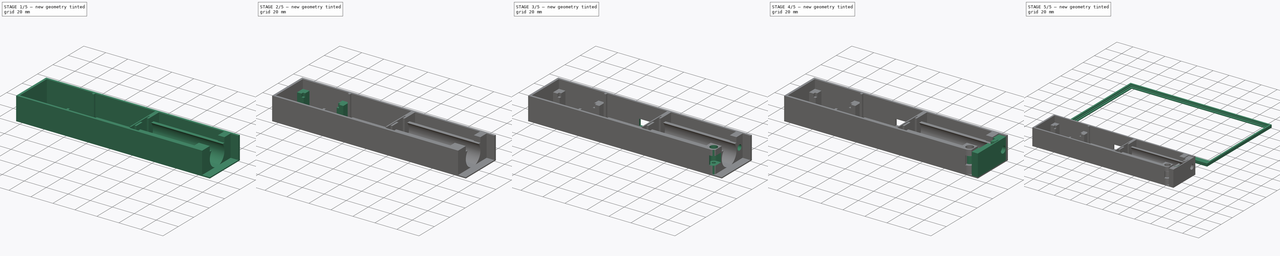
[diagram: build sequence overview — one tinted view per stage of 5, left to right]
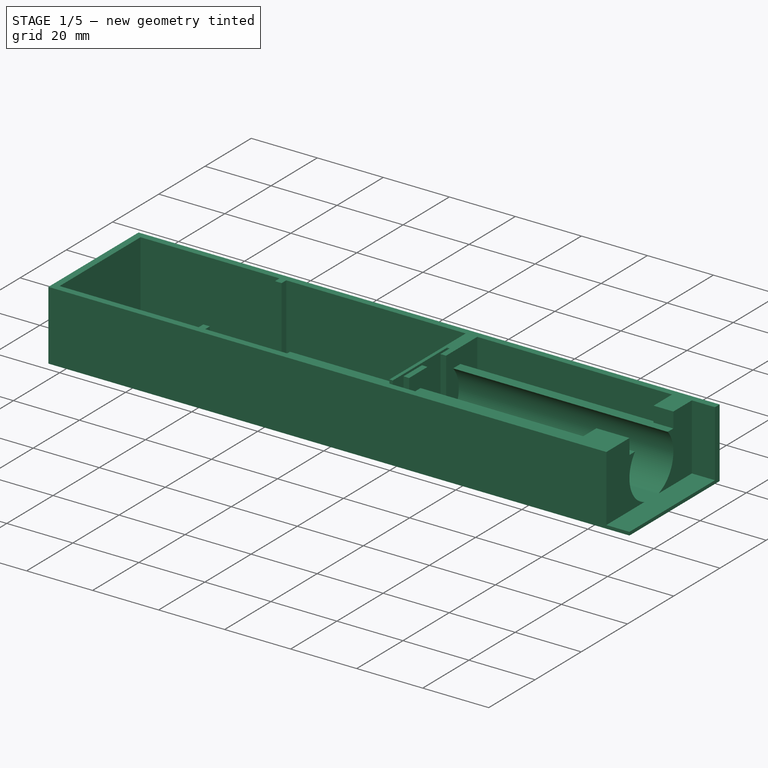
[diagram: stage 1 of 5 — iso view after this stage's code; geometry added in this stage tinted green]
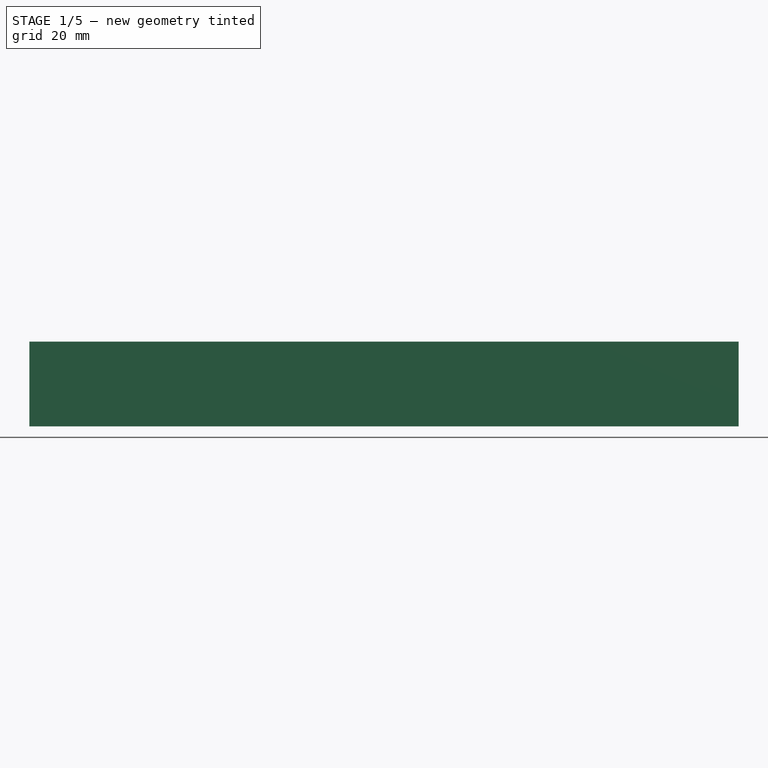
[diagram: stage 1 of 5 — front view after this stage's code; geometry added in this stage tinted green]
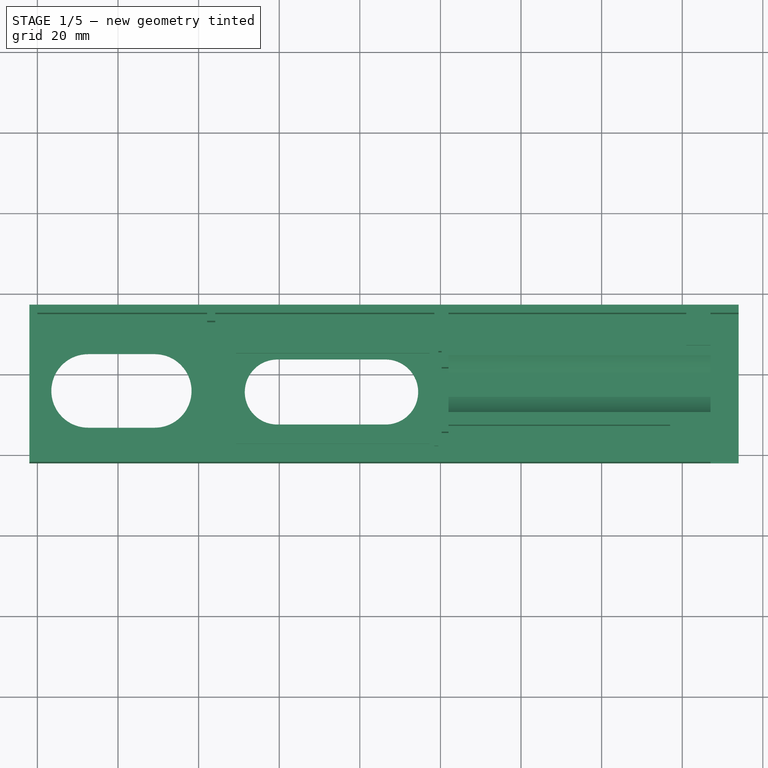
[diagram: stage 1 of 5 — top view after this stage's code; geometry added in this stage tinted green]
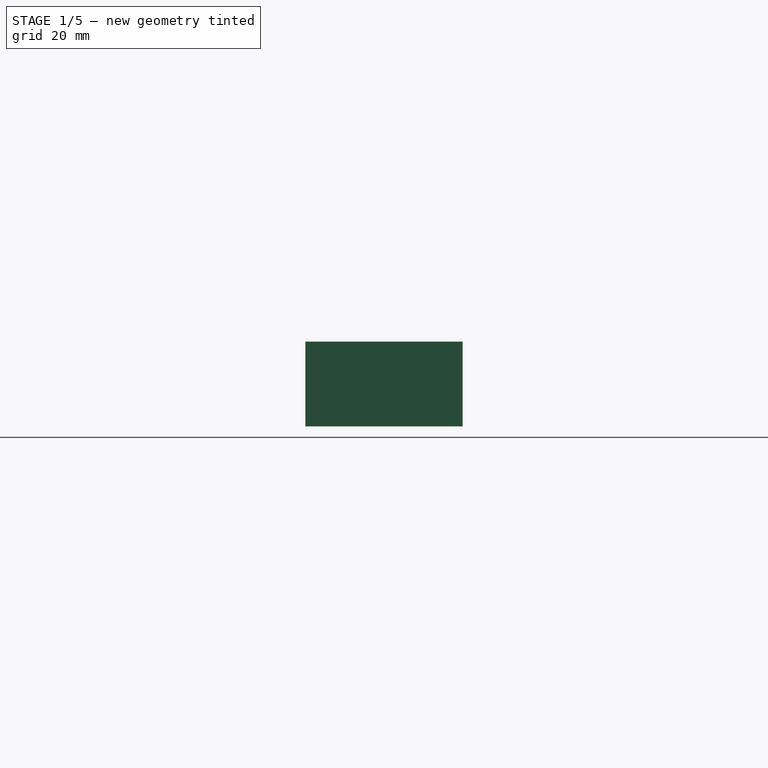
[diagram: stage 1 of 5 — right view after this stage's code; geometry added in this stage tinted green]
FCSTD DOCUMENT  (FreeCAD 0.20R29410 (Git))
Label: gehaeuse
License: All rights reserved
LicenseURL: http://en.wikipedia.org/wiki/All_rights_reserved
objects: Sketcher::SketchObject×27, PartDesign::Pocket×15, PartDesign::Pad×10, PartDesign::Plane×7, PartDesign::Mirrored×5, PartDesign::ShapeBinder×4, PartDesign::LinearPattern×3, PartDesign::MultiTransform×3, PartDesign::Body×3, PartDesign::Hole×2, PartDesign::Line×1, PartDesign::Groove×1
note: 109 computed .brp shape members not serialized (recipe doc carries the construction recipe); baked Part::Feature solids carry a one-line shape summary decoded from their .brp

FEATURE [Sketcher::SketchObject] Sketch  label="master"
  FullyConstrained = true
  expr: Constraints[43] = .Constraints.poleoffset
  expr: Constraints[44] = .Constraints.poleoffset
  expr: Constraints[45] = .Constraints.poleoffset
  expr: Constraints[88] = .Constraints.thick
  expr: Constraints[89] = .Constraints.thick
  expr: Constraints[90] = .Constraints.thick
  sketch-geometry (60):
    g0: LineSegment StartX=0 StartY=0 StartZ=0 EndX=172 EndY=0 EndZ=0
    g1: LineSegment StartX=172 StartY=0 StartZ=0 EndX=172 EndY=35 EndZ=0
    g2: LineSegment StartX=172 StartY=35 StartZ=0 EndX=0 EndY=35 EndZ=0
    g3: LineSegment StartX=0 StartY=35 StartZ=0 EndX=0 EndY=0 EndZ=0
    g4: LineSegment StartX=98.5 StartY=35 StartZ=0 EndX=99.5 EndY=35 EndZ=0
    g5: LineSegment StartX=99.5 StartY=35 StartZ=0 EndX=99.5 EndY=0 EndZ=0
    g6: LineSegment StartX=99.5 StartY=0 StartZ=0 EndX=98.5 EndY=0 EndZ=0
    g7: LineSegment StartX=98.5 StartY=0 StartZ=0 EndX=98.5 EndY=35 EndZ=0
    g8: LineSegment StartX=96.25 StartY=4.3 StartZ=0 EndX=50.25 EndY=4.3 EndZ=0
    g9: LineSegment StartX=50.25 StartY=4.3 StartZ=0 EndX=50.25 EndY=27.3 EndZ=0
    g10: LineSegment StartX=50.25 StartY=27.3 StartZ=0 EndX=96.25 EndY=27.3 EndZ=0
    g11: LineSegment StartX=96.25 StartY=27.3 StartZ=0 EndX=96.25 EndY=4.3 EndZ=0
    g12: LineSegment StartX=4 StartY=29.5 StartZ=0 EndX=38 EndY=29.5 EndZ=0
    g13: LineSegment StartX=38 StartY=29.5 StartZ=0 EndX=38 EndY=5.5 EndZ=0
    g14: LineSegment StartX=38 StartY=5.5 StartZ=0 EndX=4 EndY=5.5 EndZ=0
    g15: LineSegment StartX=4 StartY=5.5 StartZ=0 EndX=4 EndY=29.5 EndZ=0
    g16: LineSegment StartX=102 StartY=26.5 StartZ=0 EndX=169 EndY=26.5 EndZ=0
    g17: LineSegment StartX=169 StartY=26.5 StartZ=0 EndX=169 EndY=8.5 EndZ=0
    g18: LineSegment StartX=169 StartY=8.5 StartZ=0 EndX=102 EndY=8.5 EndZ=0
    g19: LineSegment StartX=102 StartY=8.5 StartZ=0 EndX=102 EndY=26.5 EndZ=0
    g20: GeomPoint X=135.5 Y=17.5 Z=0
    g21: GeomPoint X=5 Y=6.5 Z=0
    g22: LineSegment StartX=5 StartY=6.5 StartZ=0 EndX=37 EndY=6.5 EndZ=0
    g23: LineSegment StartX=37 StartY=6.5 StartZ=0 EndX=37 EndY=28.5 EndZ=0
    g24: LineSegment StartX=37 StartY=28.5 StartZ=0 EndX=5 EndY=28.5 EndZ=0
    g25: LineSegment StartX=5 StartY=28.5 StartZ=0 EndX=5 EndY=6.5 EndZ=0
    g26: LineSegment StartX=172 StartY=60 StartZ=0 EndX=96 EndY=60 EndZ=0
    g27: LineSegment StartX=96 StartY=60 StartZ=0 EndX=96 EndY=46 EndZ=0
    g28: LineSegment StartX=96 StartY=46 StartZ=0 EndX=91.5 EndY=46 EndZ=0
    g29: LineSegment StartX=91.5 StartY=46 StartZ=0 EndX=91.5 EndY=38 EndZ=0
    g30: LineSegment StartX=91.5 StartY=38 StartZ=0 EndX=78.5 EndY=38 EndZ=0
    g31: LineSegment StartX=78.5 StartY=38 StartZ=0 EndX=78.5 EndY=46 EndZ=0
    g32: LineSegment StartX=78.5 StartY=46 StartZ=0 EndX=74 EndY=46 EndZ=0
    g33: LineSegment StartX=74 StartY=46 StartZ=0 EndX=74 EndY=60 EndZ=0
    g34: LineSegment StartX=74 StartY=60 StartZ=0 EndX=0 EndY=60 EndZ=0
    g35: LineSegment StartX=172 StartY=60 StartZ=0 EndX=172 EndY=171 EndZ=0
    g36: LineSegment StartX=172 StartY=171 StartZ=0 EndX=0 EndY=171 EndZ=0
    g37: LineSegment StartX=0 StartY=171 StartZ=0 EndX=0 EndY=60 EndZ=0
    g38: LineSegment StartX=49 StartY=30.6 StartZ=0 EndX=97.5 EndY=30.6 EndZ=0
    g39: LineSegment StartX=97.5 StartY=30.6 StartZ=0 EndX=97.5 EndY=1 EndZ=0
    g40: LineSegment StartX=97.5 StartY=1 StartZ=0 EndX=49 EndY=1 EndZ=0
    g41: LineSegment StartX=49 StartY=1 StartZ=0 EndX=49 EndY=30.6 EndZ=0
    g42: LineSegment StartX=49 StartY=30.6 StartZ=0 EndX=50.25 EndY=27.3 EndZ=0
    g43: LineSegment StartX=49 StartY=1 StartZ=0 EndX=50.25 EndY=4.3 EndZ=0
    g44: LineSegment StartX=97.5 StartY=30.6 StartZ=0 EndX=96.25 EndY=27.3 EndZ=0
    g45: LineSegment StartX=-2 StartY=-2 StartZ=0 EndX=174 EndY=-2 EndZ=0
    g46: LineSegment StartX=174 StartY=-2 StartZ=0 EndX=174 EndY=37 EndZ=0
    g47: LineSegment StartX=174 StartY=37 StartZ=0 EndX=-2 EndY=37 EndZ=0
    g48: LineSegment StartX=-2 StartY=37 StartZ=0 EndX=-2 EndY=-2 EndZ=0
    g49: LineSegment StartX=167 StartY=26.5 StartZ=0 EndX=167 EndY=8.5 EndZ=0
    g50: LineSegment StartX=3 StartY=168 StartZ=0 EndX=169 EndY=168 EndZ=0
    g51: LineSegment StartX=169 StartY=168 StartZ=0 EndX=169 EndY=69 EndZ=0
    g52: LineSegment StartX=169 StartY=69 StartZ=0 EndX=3 EndY=69 EndZ=0
    g53: LineSegment StartX=3 StartY=69 StartZ=0 EndX=3 EndY=168 EndZ=0
    g54: LineSegment StartX=0 StartY=0 StartZ=0 EndX=4 EndY=5.5 EndZ=0
    g55: LineSegment StartX=0 StartY=35 StartZ=0 EndX=4 EndY=29.5 EndZ=0
    g56: LineSegment StartX=167 StartY=0 StartZ=0 EndX=159 EndY=0 EndZ=0
    g57: LineSegment StartX=159 StartY=0 StartZ=0 EndX=159 EndY=8 EndZ=0
    g58: LineSegment StartX=159 StartY=8 StartZ=0 EndX=167 EndY=8 EndZ=0
    g59: LineSegment StartX=167 StartY=8 StartZ=0 EndX=167 EndY=0 EndZ=0
  constraints (171):
    c: Horizontal(g2)
    c: DistanceY(g1,g1) = 35  'innerheight'
    c: Coincident(g4,g5)
    c: Coincident(g6,g7)
    c: Coincident(g7,g4)
    c: Horizontal(g4)
    c: Vertical(g5)
    c: Vertical(g7)
    c: PointOnObject(g4,g2)
    c: Coincident(g12,g13)
    c: Coincident(g13,g14)
    c: Coincident(g14,g15)
    c: Coincident(g15,g12)
    c: Horizontal(g12)
    c: Horizontal(g14)
    c: Vertical(g13)
    c: Vertical(g15)
    c: DistanceX(g12,g12) = 34
    c: DistanceY(g15,g15) = 24
    c: DistanceX(g0,g14) = 4
    c: Coincident(g16,g17)
    c: Coincident(g17,g18)
    c: Coincident(g18,g19)
    c: Coincident(g19,g16)
    c: Horizontal(g16)
    c: Horizontal(g18)
    c: Vertical(g17)
    c: Vertical(g19)
    c: DistanceX(g4,g16) = 2.5
    c: Symmetric(g16,g17,g20)
    c: DistanceY(g19,g19) = 18
    c: DistanceX(g16,g16) = 67
    c: DistanceY(g16,g1) = 8.5
    c: DistanceX(g14,g21) = 1  'poleoffset'
    c: Coincident(g22,g23)
    c: Coincident(g23,g24)
    c: Coincident(g24,g25)
    c: Coincident(g25,g22)
    c: Horizontal(g22)
    c: Horizontal(g24)
    c: Vertical(g23)
    c: Vertical(g25)
    c: Coincident(g22,g21)
    c: DistanceY(g14,g22) = 1
    c: DistanceY(g23,g12) = 1
    c: DistanceX(g23,g12) = 1
    c: Horizontal(g26)
    c: Coincident(g27,g28)
    c: Coincident(g28,g29)
    c: Coincident(g29,g30)
    c: Horizontal(g30)
    c: Coincident(g30,g31)
    c: Vertical(g31)
    c: Coincident(g31,g32)
    c: Horizontal(g32)
    c: Coincident(g32,g33)
    c: Vertical(g33)
    c: Horizontal(g34)
    c: Vertical(g29)
    c: PointOnObject(g26,g34)
    c: DistanceY(g27,g27) = 14
    c: Horizontal(g28)
    c: PointOnObject(g28,g32)
    c: Equal(g32,g28)
    c: DistanceX(g30,g30) = 13
    c: DistanceY(g29,g29) = 8
    c: DistanceX(g26,g26) = 76
    c: Coincident(g26,g35)
    c: Vertical(g35)
    c: Coincident(g35,g36)
    c: Horizontal(g36)
    c: Coincident(g36,g37)
    c: Coincident(g37,g34)
    c: DistanceY(g35,g35) = 111
    c: Vertical(g37)
    c: Coincident(g38,g39)
    c: Coincident(g39,g40)
    c: Horizontal(g40)
    c: Vertical(g39)
    c: Coincident(g45,g46)
    c: Coincident(g46,g47)
    c: Coincident(g47,g48)
    c: Coincident(g48,g45)
    c: Horizontal(g45)
    c: Horizontal(g47)
    c: Vertical(g46)
    c: Vertical(g48)
    c: DistanceX(g45,g0) = 2  'thick'
    c: DistanceY(g45,g0) = 2
    c: DistanceY(g1,g46) = 2
    c: DistanceX(g1,g46) = 2
    c: PointOnObject(g49,g16)
    c: PointOnObject(g49,g18)
    c: Vertical(g49)
    c: DistanceX(g18,g49) = 65
    c: Coincident(g50,g51)
    c: Coincident(g51,g52)
    c: Coincident(g52,g53)
    c: Coincident(g53,g50)
    c: Horizontal(g50)
    c: Horizontal(g52)
    c: Vertical(g51)
    c: Vertical(g53)
    c: DistanceY(g0,g34) = 60
    c: DistanceY(g50,g36) = 3
    c: DistanceY(g34,g52) = 9
    c: DistanceX(g36,g50) = 3
    c: DistanceX(g50,g35) = 3
    c: PointOnObject(g0,g-1)
    c: Coincident(g5,g6)
    c: Horizontal(g6)
    c: PointOnObject(g6,g0)
    c: DistanceX(g34,g34) = 74
    c: PointOnObject(g34,g-2)
    c: Coincident(g0,g3)
    c: Vertical(g3)
    c: Coincident(g0,g-1)
    c: Coincident(g33,g34)
    c: Vertical(g27)
    c: Coincident(g27,g26)
    c: DistanceX(g33,g26) = 22
    c: DistanceX(g38,g38) = 48.5
    c: DistanceY(g41,g41) = 29.6
    c: DistanceY(g9,g9) = 23  'espheight'
    c: DistanceX(g10,g10) = 46  'espwidth'
    c: Coincident(g2,g3)
    c: Coincident(g2,g1)
    c: Coincident(g1,g0)
    c: Vertical(g1)
    c: Vertical(g26,g1)
    c: Coincident(g38,g44)
    c: Horizontal(g38)
    c: Coincident(g11,g8)
    c: Vertical(g11)
    c: Coincident(g11,g10)
    c: Coincident(g44,g10)
    c: Coincident(g38,g42)
    c: Coincident(g41,g38)
    c: Vertical(g41)
    c: Coincident(g41,g43)
    c: Coincident(g40,g41)
    c: Coincident(g8,g9)
    c: Coincident(g43,g8)
    c: Vertical(g9)
    c: Horizontal(g8)
    c: Coincident(g10,g42)
    c: Coincident(g10,g9)
    c: Horizontal(g10)
    c: Equal(g43,g42)
    c: Equal(g44,g42)
    c: DistanceX(g38,g4) = 1
    c: DistanceX(g27,g38) = 1.5
    c: DistanceY(g6,g39) = 1
    c: Coincident(g54,g0)
    c: Coincident(g54,g14)
    c: Coincident(g55,g2)
    c: Coincident(g55,g12)
    c: Equal(g55,g54)
    c: DistanceX(g6,g5) = 1
    c: Coincident(g56,g57)
    c: Coincident(g57,g58)
    c: Coincident(g58,g59)
    c: Coincident(g59,g56)
    c: Horizontal(g56)
    c: Horizontal(g58)
    c: Vertical(g57)
    c: Vertical(g59)
    c: PointOnObject(g56,g0)
    c: Vertical(g56,g49)
    c: DistanceY(g57,g57) = 8
    c: Equal(g58,g57)
FEATURE [Sketcher::SketchObject] Sketch001
  ExternalGeometry = -> [Sketch]
  FullyConstrained = false
  MapMode = 5
  Support = -> [XY_Plane]
  expr: Constraints[10] = Sketch.Constraints.thick
  expr: Constraints[11] = Sketch.Constraints.thick
  expr: Constraints[8] = Sketch.Constraints.thick
  expr: Constraints[9] = Sketch.Constraints.thick
  sketch-geometry (12):
    g0: LineSegment StartX=-2 StartY=37 StartZ=0 EndX=174 EndY=37 EndZ=0
    g1: LineSegment StartX=174 StartY=37 StartZ=0 EndX=174 EndY=-2 EndZ=0
    g2: LineSegment StartX=174 StartY=-2 StartZ=0 EndX=-2 EndY=-2 EndZ=0
    g3: LineSegment StartX=-2 StartY=-2 StartZ=0 EndX=-2 EndY=37 EndZ=0
    g4: ArcOfCircle CenterX=12.5866 CenterY=15.954 CenterZ=0 NormalX=0 NormalY=0 NormalZ=1 AngleXU=0 Radius=9.13017 StartAngle=1.5708 EndAngle=4.71239
    g5: ArcOfCircle CenterX=29.1154 CenterY=15.954 CenterZ=0 NormalX=0 NormalY=0 NormalZ=1 AngleXU=0 Radius=9.13017 StartAngle=4.71239 EndAngle=7.85398
    g6: LineSegment StartX=12.5866 StartY=6.82379 StartZ=0 EndX=29.1154 EndY=6.82379 EndZ=0
    g7: LineSegment StartX=29.1154 StartY=25.0841 StartZ=0 EndX=12.5866 EndY=25.0841 EndZ=0
    g8: ArcOfCircle CenterX=59.5283 CenterY=15.6827 CenterZ=0 NormalX=0 NormalY=0 NormalZ=1 AngleXU=0 Radius=8.07389 StartAngle=1.5708 EndAngle=4.71239
    g9: ArcOfCircle CenterX=86.4039 CenterY=15.6827 CenterZ=0 NormalX=0 NormalY=0 NormalZ=1 AngleXU=0 Radius=8.07389 StartAngle=4.71239 EndAngle=7.85398
    g10: LineSegment StartX=59.5283 StartY=7.60881 StartZ=0 EndX=86.4039 EndY=7.60881 EndZ=0
    g11: LineSegment StartX=86.4039 StartY=23.7566 StartZ=0 EndX=59.5283 EndY=23.7566 EndZ=0
  constraints (24):
    c: Coincident(g0,g1)
    c: Coincident(g1,g2)
    c: Coincident(g2,g3)
    c: Coincident(g3,g0)
    c: Horizontal(g0)
    c: Horizontal(g2)
    c: Vertical(g1)
    c: Vertical(g3)
    c: DistanceX(g-3,g1) = 2
    c: DistanceY(g1,g-3) = 2
    c: DistanceY(g-4,g0) = 2
    c: DistanceX(g0,g-4) = 2
    c: Tangent(g4,g6) = -1.5708
    c: Tangent(g6,g5) = -1.5708
    c: Tangent(g5,g7) = -1.5708
    c: Tangent(g7,g4) = -1.5708
    c: Equal(g4,g5)
    c: Horizontal(g6)
    c: Tangent(g8,g10) = -1.5708
    c: Tangent(g10,g9) = -1.5708
    c: Tangent(g9,g11) = -1.5708
    c: Tangent(g11,g8) = -1.5708
    c: Equal(g8,g9)
    c: Horizontal(g10)
FEATURE [PartDesign::Pad] Pad  label="Boden"
  Direction = (0,0,1)
  Length = 1
  Length2 = 10
  Profile = -> Sketch001
  ReferenceAxis = -> Sketch001 [N_Axis]
  Reversed = true
  Type = 0
FEATURE [Sketcher::SketchObject] Sketch002
  ExternalGeometry = -> [Pad,Sketch]
  FullyConstrained = true
  MapMode = 5
  Support = -> [XY_Plane]
  expr: Constraints[45] = Sketch.Constraints.thick
  sketch-geometry (36):
    g0: LineSegment StartX=-2 StartY=37 StartZ=0 EndX=174 EndY=37 EndZ=0
    g1: LineSegment StartX=174 StartY=37 StartZ=0 EndX=174 EndY=35 EndZ=0
    g2: LineSegment StartX=167 StartY=-2 StartZ=0 EndX=-2 EndY=-2 EndZ=0
    g3: LineSegment StartX=-2 StartY=-2 StartZ=0 EndX=-2 EndY=37 EndZ=0
    g4: LineSegment StartX=0 StartY=35 StartZ=0 EndX=42.125 EndY=35 EndZ=0
    g5: LineSegment StartX=98.5 StartY=35 StartZ=0 EndX=98.5 EndY=-5.4e-13 EndZ=0
    g6: LineSegment StartX=98.5 StartY=-5.4e-13 StartZ=0 EndX=44.125 EndY=0 EndZ=0
    g7: LineSegment StartX=0 StartY=0 StartZ=0 EndX=0 EndY=35 EndZ=0
    g8: LineSegment StartX=99.5 StartY=0 StartZ=0 EndX=157 EndY=0 EndZ=0
    g9: LineSegment StartX=161 StartY=35 StartZ=0 EndX=102 EndY=35 EndZ=0
    g10: LineSegment StartX=99.5 StartY=25.5 StartZ=0 EndX=99.5 EndY=0 EndZ=0
    g11: LineSegment StartX=100.3 StartY=25.5 StartZ=0 EndX=100.3 EndY=21.5 EndZ=0
    g12: LineSegment StartX=100.3 StartY=21.5 StartZ=0 EndX=102 EndY=21.5 EndZ=0
    g13: LineSegment StartX=102 StartY=21.5 StartZ=0 EndX=102 EndY=35 EndZ=0
    g14: LineSegment StartX=100.3 StartY=25.5 StartZ=0 EndX=99.5 EndY=25.5 EndZ=0
    g15: LineSegment StartX=102 StartY=5.5 StartZ=0 EndX=102 EndY=13.5 EndZ=0
    g16: LineSegment StartX=102 StartY=13.5 StartZ=0 EndX=100.3 EndY=13.5 EndZ=0
    g17: LineSegment StartX=100.3 StartY=13.5 StartZ=0 EndX=100.3 EndY=5.5 EndZ=0
    g18: LineSegment StartX=172 StartY=35 StartZ=0 EndX=174 EndY=35 EndZ=0
    g19: GeomPoint X=44.125 Y=4.9 Z=0
    g20: LineSegment StartX=42.125 StartY=0 StartZ=0 EndX=42.125 EndY=2 EndZ=0
    g21: LineSegment StartX=42.125 StartY=2 StartZ=0 EndX=44.125 EndY=2 EndZ=0
    g22: LineSegment StartX=44.125 StartY=2 StartZ=0 EndX=44.125 EndY=0 EndZ=0
    g23: LineSegment StartX=44.125 StartY=35 StartZ=0 EndX=44.125 EndY=33 EndZ=0
    g24: LineSegment StartX=44.125 StartY=33 StartZ=0 EndX=42.125 EndY=33 EndZ=0
    g25: LineSegment StartX=42.125 StartY=33 StartZ=0 EndX=42.125 EndY=35 EndZ=0
    g26: LineSegment StartX=44.125 StartY=35 StartZ=0 EndX=98.5 EndY=35 EndZ=0
    g27: LineSegment StartX=172 StartY=35 StartZ=0 EndX=167 EndY=35 EndZ=0
    g28: LineSegment StartX=167 StartY=35 StartZ=0 EndX=167 EndY=27 EndZ=0
    g29: LineSegment StartX=167 StartY=27 StartZ=0 EndX=161 EndY=27 EndZ=0
    g30: LineSegment StartX=161 StartY=27 StartZ=0 EndX=161 EndY=35 EndZ=0
    g31: LineSegment StartX=157 StartY=0 StartZ=0 EndX=157 EndY=8 EndZ=0
    g32: LineSegment StartX=157 StartY=8 StartZ=0 EndX=167 EndY=8 EndZ=0
    g33: LineSegment StartX=167 StartY=8 StartZ=0 EndX=167 EndY=-2 EndZ=0
    g34: LineSegment StartX=42.125 StartY=0 StartZ=0 EndX=0 EndY=0 EndZ=0
    g35: LineSegment StartX=102 StartY=5.5 StartZ=0 EndX=100.3 EndY=5.5 EndZ=0
  constraints (100):
    c: Coincident(g0,g1)
    c: Coincident(g2,g3)
    c: Coincident(g3,g0)
    c: Horizontal(g0)
    c: Horizontal(g2)
    c: Vertical(g1)
    c: Coincident(g0,g-3)
    c: Coincident(g26,g5)
    c: Coincident(g7,g4)
    c: Horizontal(g4)
    c: Vertical(g5)
    c: Coincident(g4,g-4)
    c: Coincident(g5,g-8)
    c: Coincident(g14,g10)
    c: Coincident(g10,g8)
    c: Horizontal(g9)
    c: Vertical(g10)
    c: Vertical(g11)
    c: Coincident(g11,g12)
    c: Coincident(g12,g13)
    c: Vertical(g13)
    c: Coincident(g9,g13)
    c: Coincident(g14,g11)
    c: Horizontal(g12)
    c: DistanceY(g12,g-10) = 5
    c: Horizontal(g14)
    c: DistanceY(g11,g-10) = 1
    c: DistanceX(g14,g14) = 0.8
    c: Coincident(g15,g16)
    c: Coincident(g16,g17)
    c: Horizontal(g16)
    c: Vertical(g15)
    c: Vertical(g17)
    c: PointOnObject(g16,g11)
    c: Coincident(g18,g-9)
    c: Horizontal(g18)
    c: Coincident(g1,g18)
    c: PointOnObject(g1,g-12)
    c: PointOnObject(g27,g18)
    c: Symmetric(g-13,g-14,g19)
    c: Vertical(g20)
    c: Coincident(g20,g21)
    c: Horizontal(g21)
    c: Coincident(g21,g22)
    c: Vertical(g22)
    c: DistanceX(g21,g21) = 2
    c: PointOnObject(g19,g22)
    c: Coincident(g6,g22)
    c: Vertical(g23)
    c: Coincident(g23,g24)
    c: Horizontal(g24)
    c: Coincident(g24,g25)
    c: Vertical(g25)
    c: PointOnObject(g23,g22)
    c: PointOnObject(g24,g20)
    c: Equal(g23,g22)
    c: Coincident(g4,g25)
    c: Coincident(g26,g23)
    c: PointOnObject(g23,g4)
    c: Horizontal(g26)
    c: Coincident(g27,g18)
    c: Coincident(g27,g28)
    c: Vertical(g28)
    c: Coincident(g28,g29)
    c: Horizontal(g29)
    c: Coincident(g29,g30)
    c: Vertical(g30)
    c: Coincident(g9,g30)
    c: DistanceY(g28,g28) = 8
    c: DistanceX(g29,g29) = 6
    c: Equal(g28,g30)
    c: DistanceX(g15,g28) = 65
    c: Vertical(g31)
    c: Coincident(g31,g32)
    c: Horizontal(g32)
    c: Coincident(g32,g33)
    c: Vertical(g33)
    c: Coincident(g8,g31)
    c: Vertical(g28,g32)
    c: Equal(g30,g31)
    c: Coincident(g2,g33)
    c: PointOnObject(g8,g-1)
    c: Coincident(g-1,g7)
    c: Coincident(g34,g20)
    c: Coincident(g34,g7)
    c: Horizontal(g34)
    c: DistanceY(g20,g20) = 2
    c: PointOnObject(g6,g-1)
    c: Coincident(g2,g-15)
    c: Coincident(g6,g5)
    c: Coincident(g8,g-7)
    c: Coincident(g35,g15)
    c: Coincident(g35,g17)
    c: Horizontal(g35)
    c: DistanceY(g-11,g15) = 5
    c: DistanceY(g15,g-11) = 3
    c: PointOnObject(g12,g-16)
    c: Vertical(g15,g12)
    c: DistanceY(g16,g11) = 8
    c: DistanceX(g32,g32) = 10
FEATURE [PartDesign::Pad] Pad001  label="Wand"
  BaseFeature = -> Pad
  Direction = (0,0,1)
  Length = 20
  Length2 = 10
  Profile = -> Sketch002
  ReferenceAxis = -> Sketch002 [N_Axis]
  Type = 0
FEATURE [PartDesign::Plane] DatumPlane
  Length = 73.1355
  MapMode = 47
  Placement = pos=(102,8.5,0) rot=(0.57735,0.57735,-0.57735;4.18879rad)
  ResizeMode = 0
  Support = -> [Sketch]
  Width = 61.1355
FEATURE [Sketcher::SketchObject] Sketch003
  ExternalGeometry = -> [Sketch]
  FullyConstrained = true
  MapMode = 5
  Placement = pos=(102,8.5,0) rot=(0.57735,0.57735,-0.57735;4.18879rad)
  Support = -> [DatumPlane]
  expr: Constraints[15] = (1 + sqrt(2) / 2) * 9
  sketch-geometry (10):
    g0: LineSegment StartX=-1.2 StartY=0 StartZ=0 EndX=5.95862 EndY=0 EndZ=0
    g1: LineSegment StartX=19.2 StartY=-9.166e-13 StartZ=0 EndX=19.2 EndY=-15.364 EndZ=0
    g2: LineSegment StartX=19.2 StartY=-15.364 StartZ=0 EndX=16.0534 EndY=-15.364 EndZ=0
    g3: ArcOfCircle CenterX=9 CenterY=-9 CenterZ=0 NormalX=0 NormalY=0 NormalZ=1 AngleXU=0 Radius=9.5 StartAngle=5.54912 EndAngle=7.5281
    g4: LineSegment StartX=1.94663 StartY=-15.364 StartZ=0 EndX=-1.2 EndY=-15.364 EndZ=0
    g5: LineSegment StartX=-1.2 StartY=-15.364 StartZ=0 EndX=-1.2 EndY=0 EndZ=0
    g6: GeomPoint X=5.95862 Y=0 Z=0
    g7: GeomPoint X=5.95862 Y=0 Z=0
    g8: ArcOfCircle CenterX=9 CenterY=-9 CenterZ=0 NormalX=0 NormalY=0 NormalZ=1 AngleXU=0 Radius=9.5 StartAngle=1.89668 EndAngle=3.87565
    g9: LineSegment StartX=12.0414 StartY=-9.166e-13 StartZ=0 EndX=19.2 EndY=-9.166e-13 EndZ=0
  constraints (29):
    c: PointOnObject(g0,g-1)
    c: Horizontal(g0)
    c: Coincident(g9,g1)
    c: Vertical(g1)
    c: Coincident(g1,g2)
    c: Horizontal(g2)
    c: Horizontal(g4)
    c: Coincident(g4,g5)
    c: Coincident(g5,g0)
    c: Coincident(g3,g2)
    c: Coincident(g8,g4)
    c: Vertical(g5)
    c: PointOnObject(g8,g2)
    c: DistanceY(g3,g-3) = 9
    c: Radius(g3) = 9.5
    c: DistanceY(g5,g5) = 15.364
    c: Equal(g4,g2)
    c: DistanceX(g0,g-1) = 1.2
    c: DistanceX(g-3,g9) = 1.2
    c: PointOnObject(g6,g3)
    c: PointOnObject(g7,g3)
    c: PointOnObject(g7,g0)
    c: PointOnObject(g6,g0)
    c: Equal(g3,g8)
    c: Coincident(g3,g8)
    c: Coincident(g0,g8)
    c: Horizontal(g9)
    c: PointOnObject(g1,g-1)
    c: Coincident(g9,g3)
FEATURE [PartDesign::Pad] Pad002  label="Barrel"
  BaseFeature = -> Pad001
  Direction = (-1,0,0)
  Length = 65
  Length2 = 10
  Profile = -> Sketch003
  ReferenceAxis = -> Sketch003 [N_Axis]
  Reversed = true
  Type = 0
FEATURE [Sketcher::SketchObject] Sketch004
  ExternalGeometry = -> [Sketch]
  FullyConstrained = true
  MapMode = 5
  Placement = pos=(102,8.5,0) rot=(0.57735,0.57735,-0.57735;4.18879rad)
  Support = -> [DatumPlane]
  sketch-geometry (4):
    g0: LineSegment StartX=-8.5 StartY=-20 StartZ=0 EndX=-6.5 EndY=-20 EndZ=0
    g1: LineSegment StartX=-6.5 StartY=-20 StartZ=0 EndX=-6.5 EndY=-15 EndZ=0
    g2: LineSegment StartX=-6.5 StartY=-15 StartZ=0 EndX=-8.5 EndY=-15 EndZ=0
    g3: LineSegment StartX=-8.5 StartY=-15 StartZ=0 EndX=-8.5 EndY=-20 EndZ=0
  constraints (12):
    c: Coincident(g0,g1)
    c: Coincident(g1,g2)
    c: Coincident(g2,g3)
    c: Coincident(g3,g0)
    c: Horizontal(g0)
    c: Horizontal(g2)
    c: Vertical(g1)
    c: Vertical(g3)
    c: DistanceY(g0,g-1) = 20
    c: DistanceX(g2,g2) = 2
    c: DistanceY(g1,g1) = 5
    c: Vertical(g2,g-3)
FEATURE [PartDesign::Pocket] Pocket  label="kabeldurchgang"
  BaseFeature = -> Pad002
  Direction = (1,0,0)
  Length = 10
  Length2 = 5
  Profile = -> Sketch004
  ReferenceAxis = -> Sketch004 [N_Axis]
  Reversed = true
  Type = 0
FEATURE [Sketcher::SketchObject] Sketch005
  ExternalGeometry = -> [Sketch]
  FullyConstrained = true
  MapMode = 5
  Support = -> [XY_Plane]
  sketch-geometry (4):
    g0: LineSegment StartX=49.25 StartY=6.8 StartZ=0 EndX=97.25 EndY=6.8 EndZ=0
    g1: LineSegment StartX=97.25 StartY=6.8 StartZ=0 EndX=97.25 EndY=2.8 EndZ=0
    g2: LineSegment StartX=97.25 StartY=2.8 StartZ=0 EndX=49.25 EndY=2.8 EndZ=0
    g3: LineSegment StartX=49.25 StartY=2.8 StartZ=0 EndX=49.25 EndY=6.8 EndZ=0
  constraints (12):
    c: Coincident(g0,g1)
    c: Coincident(g1,g2)
    c: Coincident(g2,g3)
    c: Coincident(g3,g0)
    c: Horizontal(g0)
    c: Horizontal(g2)
    c: Vertical(g1)
    c: Vertical(g3)
    c: DistanceY(g2,g-5) = 1.5
    c: DistanceY(g-5,g0) = 2.5
    c: DistanceX(g0,g-5) = 1
    c: DistanceX(g-4,g1) = 1
FEATURE [PartDesign::Pad] Pad003
  BaseFeature = -> Pocket
  Direction = (0,0,1)
  Length = 3
  Length2 = 10
  Profile = -> Sketch005
  ReferenceAxis = -> Sketch005 [N_Axis]
  TaperAngle = 3
  Type = 0
FEATURE [PartDesign::Pad] Pad004
  BaseFeature = -> Pad003
  Direction = (0,0,1)
  Length = 4
  Length2 = 10
  Profile = -> Sketch005
  ReferenceAxis = -> Sketch005 [N_Axis]
  Type = 0
FEATURE [PartDesign::LinearPattern] LinearPattern
  BaseFeature = -> Pad004
  Direction = -> Sketch005 [V_Axis]
  Length = 22.5
  Occurrences = 2
  Originals = -> [Pad004]
  expr: Length = Sketch.Constraints.espheight - 0.5mm
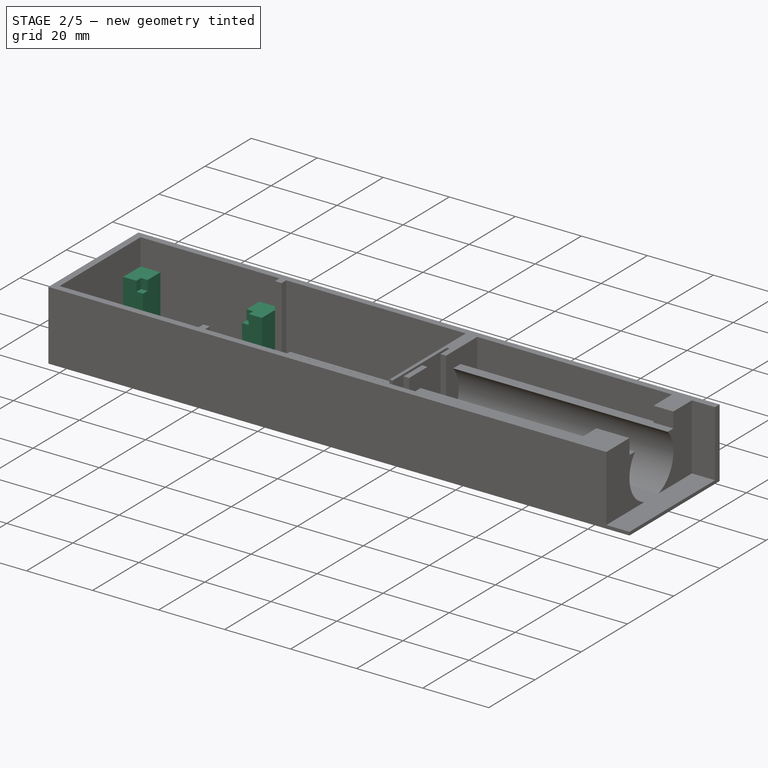
[diagram: stage 2 of 5 — iso view after this stage's code; geometry added in this stage tinted green]
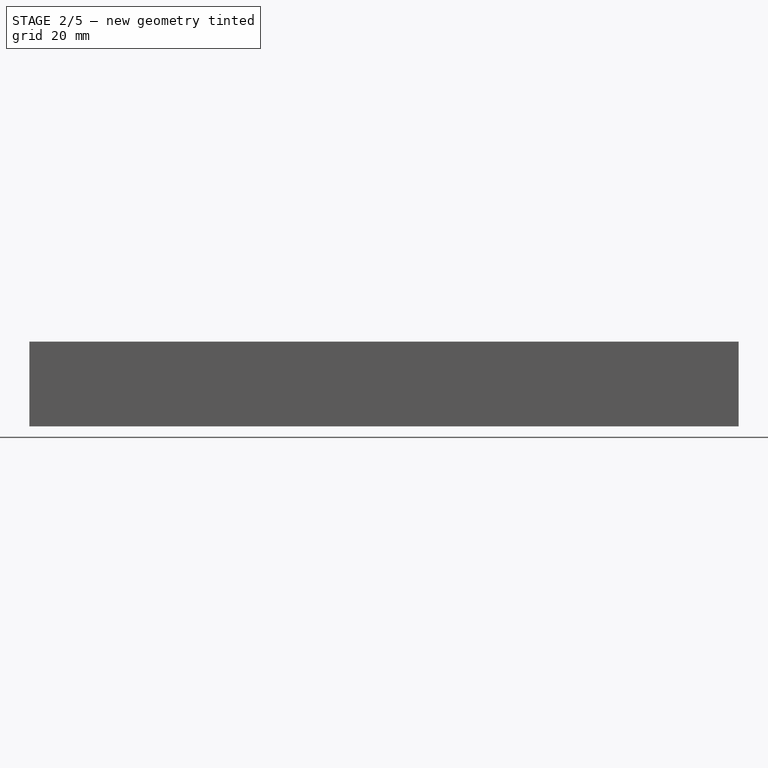
[diagram: stage 2 of 5 — front view after this stage's code; geometry added in this stage tinted green]
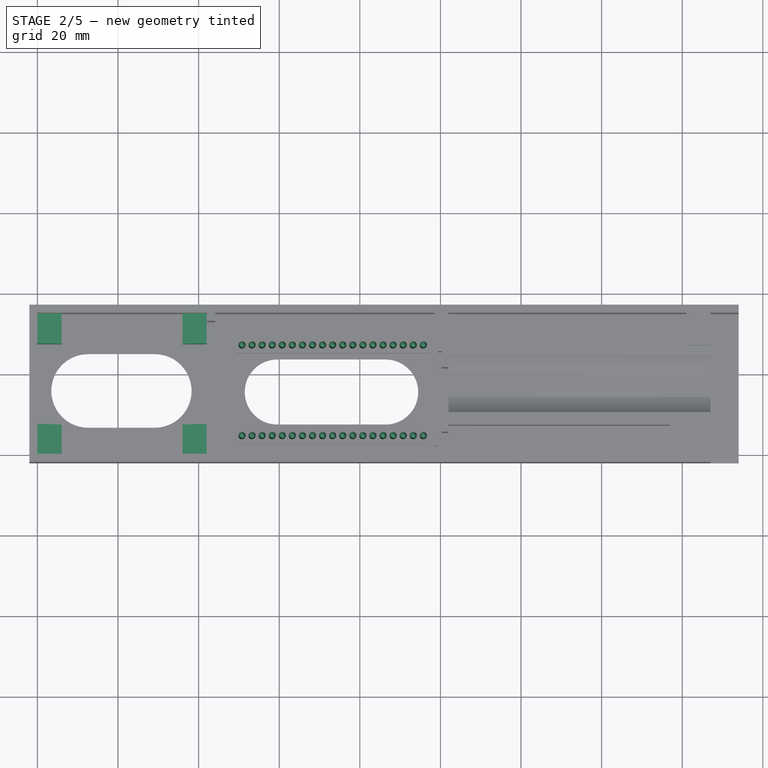
[diagram: stage 2 of 5 — top view after this stage's code; geometry added in this stage tinted green]
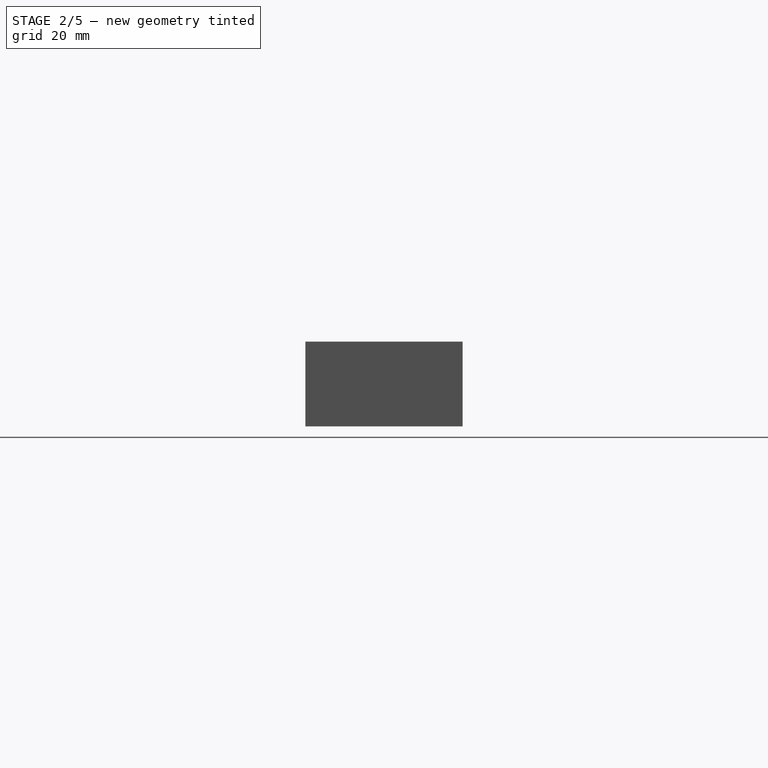
[diagram: stage 2 of 5 — right view after this stage's code; geometry added in this stage tinted green]
FEATURE [Sketcher::SketchObject] Sketch006
  ExternalGeometry = -> [Sketch]
  FullyConstrained = true
  MapMode = 5
  Support = -> [XY_Plane]
  sketch-geometry (1):
    g0: Circle CenterX=95.75 CenterY=4.8 CenterZ=0 NormalX=0 NormalY=0 NormalZ=1 AngleXU=0 Radius=0.5
  constraints (3):
    c: DistanceX(g0,g-3) = 0.5
    c: DistanceY(g-3,g0) = 0.5
    c: Radius(g0) = 0.5
FEATURE [PartDesign::Pocket] Pocket001
  BaseFeature = -> LinearPattern
  Direction = (0,0,-1)
  Length = 4.1
  Length2 = 5
  Profile = -> Sketch006
  ReferenceAxis = -> Sketch006 [N_Axis]
  Reversed = true
  TaperAngle = 6
  Type = 0
FEATURE [PartDesign::LinearPattern] LinearPattern001
  Direction = -> Sketch006 [H_Axis]
  Length = 45
  Occurrences = 19
  Reversed = true
  expr: Length = Sketch.Constraints.espwidth - 1mm
FEATURE [PartDesign::LinearPattern] LinearPattern002
  Direction = -> Sketch006 [V_Axis]
  Length = 22.5
  Occurrences = 2
  expr: Length = Sketch.Constraints.espheight - 0.5mm
FEATURE [PartDesign::MultiTransform] MultiTransform
  BaseFeature = -> Pocket001
  Originals = -> [Pocket001]
  Transformations = -> [LinearPattern001,LinearPattern002]
FEATURE [PartDesign::Plane] DatumPlane002
  Length = 73.1355
  MapMode = 45
  Placement = pos=(21,29.5,0) rot=(0.57735,0.57735,0.57735;2.0944rad)
  ResizeMode = 0
  Support = -> [Sketch]
  Width = 61.1355
FEATURE [PartDesign::Plane] DatumPlane003
  Length = 218.95
  MapMode = 45
  Placement = pos=(38,17.5,0) rot=(0,0.707107,0.707107;3.14159rad)
  ResizeMode = 0
  Support = -> [Sketch]
  Width = 69.9499
FEATURE [Sketcher::SketchObject] Sketch007
  ExternalGeometry = -> [Sketch]
  FullyConstrained = true
  MapMode = 5
  Support = -> [XY_Plane]
  sketch-geometry (4):
    g0: LineSegment StartX=6 StartY=7.5 StartZ=0 EndX=6 EndY=0 EndZ=0
    g1: LineSegment StartX=0 StartY=7.5 StartZ=0 EndX=6 EndY=7.5 EndZ=0
    g2: LineSegment StartX=6 StartY=0 StartZ=0 EndX=0 EndY=0 EndZ=0
    g3: LineSegment StartX=0 StartY=0 StartZ=0 EndX=0 EndY=7.5 EndZ=0
  constraints (11):
    c: Vertical(g0)
    c: Coincident(g1,g0)
    c: Horizontal(g1)
    c: DistanceX(g-3,g0) = 2
    c: DistanceY(g-3,g0) = 2
    c: Coincident(g0,g2)
    c: Horizontal(g2)
    c: Coincident(g2,g3)
    c: Coincident(g3,g1)
    c: Vertical(g3)
    c: Coincident(g2,g-1)
FEATURE [PartDesign::Pad] Pad005
  BaseFeature = -> MultiTransform
  Direction = (0,0,1)
  Length = 12
  Length2 = 10
  Profile = -> Sketch007
  ReferenceAxis = -> Sketch007 [N_Axis]
  Type = 0
FEATURE [Sketcher::SketchObject] Sketch008
  AttachmentOffset = pos=(0,0,9) rot=(0,0,1;0rad)
  ExternalGeometry = -> [Sketch,Sketch007]
  FullyConstrained = true
  MapMode = 5
  Placement = pos=(0,0,9) rot=(0,0,1;0rad)
  Support = -> [XY_Plane]
  sketch-geometry (4):
    g0: LineSegment StartX=4 StartY=5.5 StartZ=0 EndX=6 EndY=5.5 EndZ=0
    g1: LineSegment StartX=6 StartY=5.5 StartZ=0 EndX=6 EndY=7.5 EndZ=0
    g2: LineSegment StartX=6 StartY=7.5 StartZ=0 EndX=4 EndY=7.5 EndZ=0
    g3: LineSegment StartX=4 StartY=7.5 StartZ=0 EndX=4 EndY=5.5 EndZ=0
  constraints (10):
    c: Coincident(g0,g1)
    c: Coincident(g1,g2)
    c: Coincident(g2,g3)
    c: Coincident(g3,g0)
    c: Horizontal(g0)
    c: Horizontal(g2)
    c: Vertical(g1)
    c: Vertical(g3)
    c: Coincident(g0,g-4)
    c: Coincident(g1,g-5)
FEATURE [PartDesign::Mirrored] Mirrored
  MirrorPlane = -> DatumPlane003
FEATURE [PartDesign::Mirrored] Mirrored001
  MirrorPlane = -> DatumPlane002
FEATURE [PartDesign::MultiTransform] MultiTransform001
  BaseFeature = -> Pad005
  Originals = -> [Pad005]
  Transformations = -> [Mirrored,Mirrored001]
FEATURE [PartDesign::Pocket] Pocket002
  BaseFeature = -> MultiTransform001
  Direction = (0,0,-1)
  Length = 5
  Length2 = 5
  Profile = -> Sketch008
  ReferenceAxis = -> Sketch008 [N_Axis]
  Reversed = true
  Type = 0
FEATURE [PartDesign::Mirrored] Mirrored002
  MirrorPlane = -> DatumPlane003
FEATURE [PartDesign::Mirrored] Mirrored003
  MirrorPlane = -> DatumPlane002
FEATURE [PartDesign::MultiTransform] MultiTransform002
  BaseFeature = -> Pocket002
  Originals = -> [Pocket002]
  Transformations = -> [Mirrored002,Mirrored003]
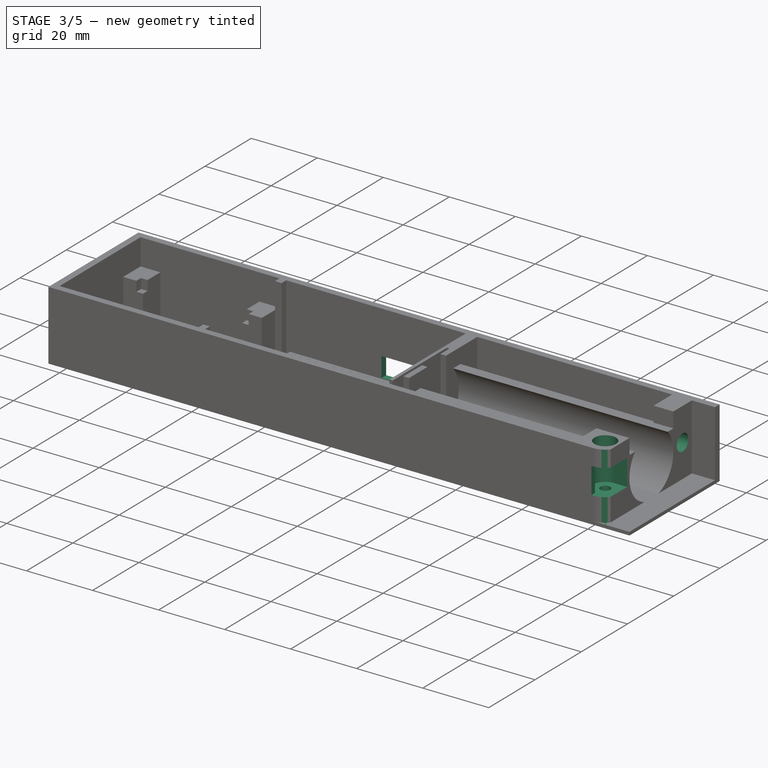
[diagram: stage 3 of 5 — iso view after this stage's code; geometry added in this stage tinted green]
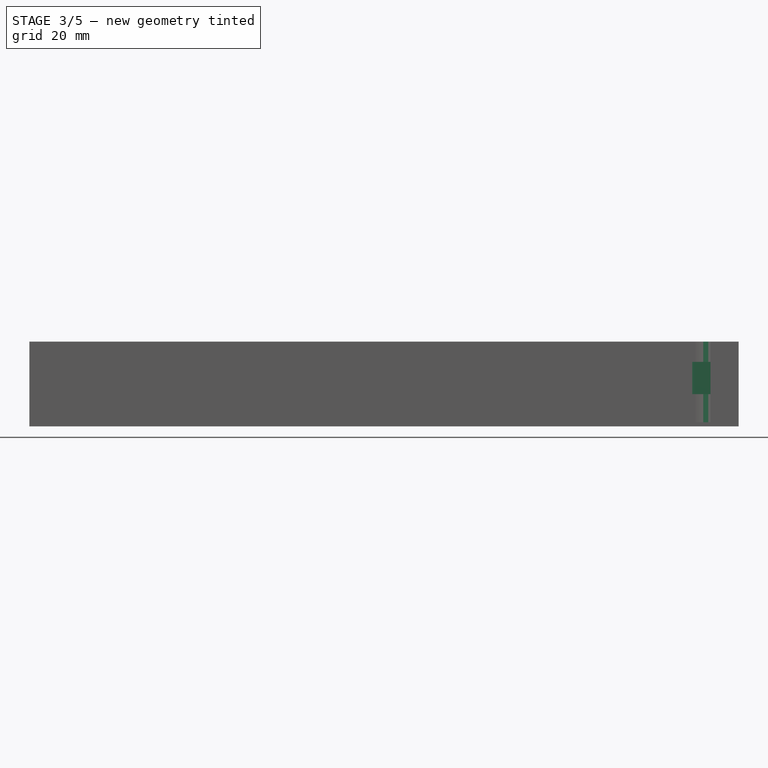
[diagram: stage 3 of 5 — front view after this stage's code; geometry added in this stage tinted green]
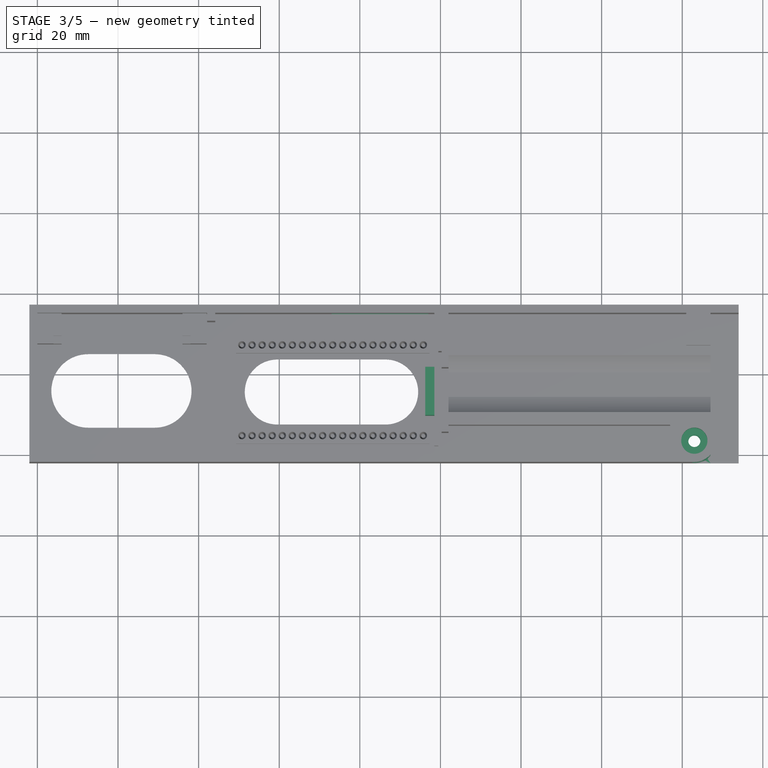
[diagram: stage 3 of 5 — top view after this stage's code; geometry added in this stage tinted green]
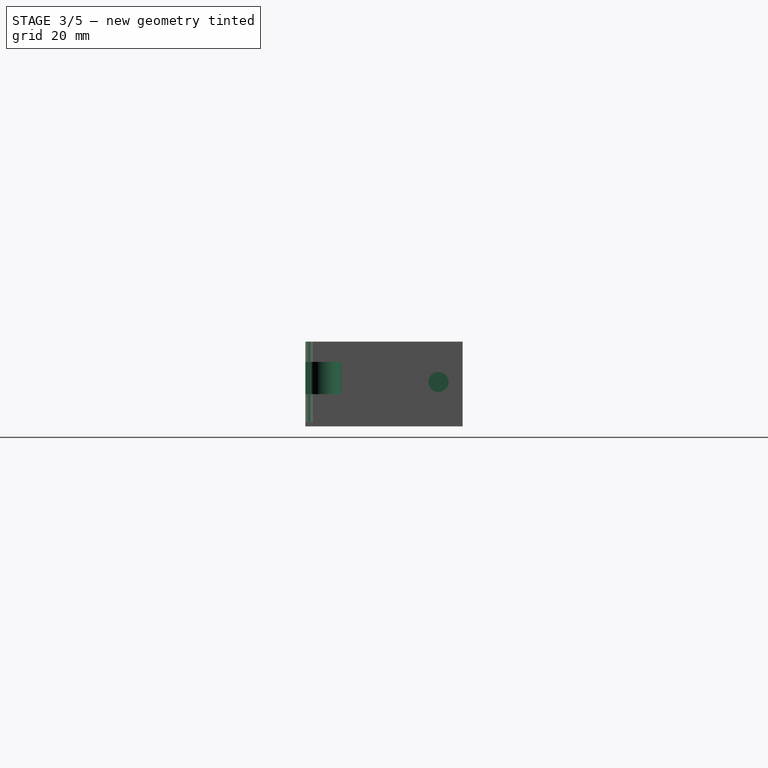
[diagram: stage 3 of 5 — right view after this stage's code; geometry added in this stage tinted green]
FEATURE [PartDesign::Plane] DatumPlane004
  Length = 218.95
  MapMode = 50
  Placement = pos=(98.5,35,0) rot=(0,0.707107,0.707107;3.14159rad)
  ResizeMode = 0
  Support = -> [Sketch]
  Width = 69.9499
FEATURE [Sketcher::SketchObject] Sketch009
  ExternalGeometry = -> [Sketch]
  FullyConstrained = true
  MapMode = 5
  Placement = pos=(98.5,35,0) rot=(0,0.707107,0.707107;3.14159rad)
  Support = -> [DatumPlane004]
  sketch-geometry (6):
    g0: LineSegment StartX=1.5 StartY=1 StartZ=0 EndX=25.5 EndY=1 EndZ=0
    g1: LineSegment StartX=25.5 StartY=1 StartZ=0 EndX=25.5 EndY=7 EndZ=0
    g2: LineSegment StartX=25.5 StartY=7 StartZ=0 EndX=1.5 EndY=7 EndZ=0
    g3: LineSegment StartX=1.5 StartY=7 StartZ=0 EndX=1.5 EndY=1 EndZ=0
    g4: LineSegment StartX=1.5 StartY=1 StartZ=0 EndX=2.5 EndY=-1.1653e-12 EndZ=0
    g5: LineSegment StartX=24.5 StartY=1.1621e-12 StartZ=0 EndX=25.5 EndY=1 EndZ=0
  constraints (16):
    c: Coincident(g0,g1)
    c: Coincident(g1,g2)
    c: Coincident(g2,g3)
    c: Coincident(g3,g0)
    c: Horizontal(g0)
    c: Horizontal(g2)
    c: Vertical(g1)
    c: Vertical(g3)
    c: DistanceX(g2,g2) = 24
    c: DistanceY(g1,g1) = 6
    c: DistanceY(g-1,g0) = 1
    c: Coincident(g4,g0)
    c: Coincident(g4,g-3)
    c: Coincident(g5,g-4)
    c: Coincident(g5,g0)
    c: Equal(g4,g5)
FEATURE [PartDesign::Pocket] Pocket003
  BaseFeature = -> MultiTransform002
  Direction = (0,-1,2e-16)
  Length = 5
  Length2 = 5
  Profile = -> Sketch009
  ReferenceAxis = -> Sketch009 [N_Axis]
  Reversed = true
  Type = 0
FEATURE [PartDesign::Plane] DatumPlane005
  Length = 73.1355
  MapMode = 50
  Placement = pos=(172,35,0) rot=(0.57735,-0.57735,-0.57735;2.0944rad)
  ResizeMode = 0
  Support = -> [Sketch]
  Width = 61.1355
FEATURE [Sketcher::SketchObject] Sketch015
  ExternalGeometry = -> [Pocket003]
  FullyConstrained = true
  MapMode = 5
  Placement = pos=(172,35,0) rot=(0.57735,-0.57735,-0.57735;2.0944rad)
  Support = -> [DatumPlane005]
  sketch-geometry (1):
    g0: Circle CenterX=4 CenterY=10 CenterZ=0 NormalX=0 NormalY=0 NormalZ=1 AngleXU=0 Radius=2.5
  constraints (2):
    c: Radius(g0) = 2.5
    c: Symmetric(g-1,g-3,g0)
FEATURE [PartDesign::Pocket] Pocket006
  BaseFeature = -> Pocket003
  Direction = (1,0,0)
  Length = 10
  Length2 = 5
  Profile = -> Sketch015
  ReferenceAxis = -> Sketch015 [N_Axis]
  Reversed = true
  Type = 0
FEATURE [Sketcher::SketchObject] Sketch016
  ExternalGeometry = -> [Sketch]
  FullyConstrained = true
  MapMode = 5
  Support = -> [XY_Plane]
  sketch-geometry (6):
    g0: LineSegment StartX=96.25 StartY=21.8 StartZ=0 EndX=98.5 EndY=21.8 EndZ=0
    g1: LineSegment StartX=98.5 StartY=21.8 StartZ=0 EndX=98.5 EndY=9.8 EndZ=0
    g2: LineSegment StartX=98.5 StartY=9.8 StartZ=0 EndX=96.25 EndY=9.8 EndZ=0
    g3: LineSegment StartX=96.25 StartY=9.8 StartZ=0 EndX=96.25 EndY=21.8 EndZ=0
    g4: LineSegment StartX=96.25 StartY=4.3 StartZ=0 EndX=96.25 EndY=9.8 EndZ=0
    g5: LineSegment StartX=96.25 StartY=21.8 StartZ=0 EndX=96.25 EndY=27.3 EndZ=0
  constraints (16):
    c: Coincident(g0,g1)
    c: Coincident(g1,g2)
    c: Coincident(g2,g3)
    c: Coincident(g3,g0)
    c: Horizontal(g0)
    c: Horizontal(g2)
    c: Vertical(g1)
    c: Vertical(g3)
    c: PointOnObject(g0,g-3)
    c: PointOnObject(g1,g-4)
    c: Coincident(g4,g-3)
    c: Coincident(g4,g2)
    c: Coincident(g5,g0)
    c: Coincident(g5,g-3)
    c: Equal(g5,g4)
    c: DistanceY(g3,g3) = 12
FEATURE [PartDesign::Pad] Pad007
  BaseFeature = -> Pocket006
  Direction = (0,0,1)
  Length = 8
  Length2 = 10
  Profile = -> Sketch016
  ReferenceAxis = -> Sketch016 [N_Axis]
  Type = 0
FEATURE [PartDesign::Body] Body002  label="Rahmen"
  Group = -> [ShapeBinder002,Sketch025,Pad009,Sketch026,Pocket012,Sketch027,Pad010,Sketch028,Pocket013]
  Origin = -> Origin002
  Tip = -> Pocket013
FEATURE [Sketcher::SketchObject] Sketch029
  AttachmentOffset = pos=(0,0,20) rot=(0,0,1;0rad)
  ExternalGeometry = -> [Sketch]
  FullyConstrained = true
  MapMode = 5
  Placement = pos=(0,0,20) rot=(0,0,1;0rad)
  Support = -> [XY_Plane]
  sketch-geometry (4):
    g0: Circle CenterX=163 CenterY=3.25 CenterZ=0 NormalX=0 NormalY=0 NormalZ=1 AngleXU=0 Radius=3.25
    g1: LineSegment StartX=159 StartY=4e-16 StartZ=0 EndX=167 EndY=0 EndZ=0
    g2: LineSegment StartX=163 StartY=3.25 StartZ=0 EndX=159 EndY=4e-16 EndZ=0
    g3: LineSegment StartX=163 StartY=3.25 StartZ=0 EndX=167 EndY=0 EndZ=0
  constraints (9):
    c: Diameter(g0) = 6.5
    c: Coincident(g1,g-3)
    c: Coincident(g1,g-4)
    c: Tangent(g1,g0)
    c: Coincident(g2,g0)
    c: Coincident(g2,g1)
    c: Coincident(g3,g0)
    c: Coincident(g3,g1)
    c: Equal(g3,g2)
FEATURE [PartDesign::Hole] Hole001
  BaseFeature = -> Pad007
  CustomThreadClearance = 0
  Depth = 25
  DepthType = 0
  Diameter = 3
  DrillForDepth = false
  DrillPoint = 1
  DrillPointAngle = 118
  HoleCutCountersinkAngle = 90
  HoleCutCustomValues = false
  HoleCutDepth = 3.5
  HoleCutDiameter = 6.5
  HoleCutType = 1
  ModelThread = false
  Profile = -> Sketch029
  Tapered = false
  TaperedAngle = 90
  ThreadClass = 0
  ThreadDepth = 25
  ThreadDepthType = 0
  ThreadDirection = 0
  ThreadFit = 0
  ThreadSize = 0
  ThreadType = 0
  Threaded = false
  UseCustomThreadClearance = false
FEATURE [Sketcher::SketchObject] Sketch030
  ExternalGeometry = -> [Hole001]
  FullyConstrained = true
  MapMode = 5
  Support = -> [XY_Plane]
  sketch-geometry (7):
    g0: LineSegment StartX=164.732 StartY=0.25 StartZ=0 EndX=166.464 EndY=3.25 EndZ=0
    g1: LineSegment StartX=166.464 StartY=3.25 StartZ=0 EndX=164.732 EndY=6.25 EndZ=0
    g2: LineSegment StartX=164.732 StartY=6.25 StartZ=0 EndX=161.268 EndY=6.25 EndZ=0
    g3: LineSegment StartX=161.268 StartY=6.25 StartZ=0 EndX=159.536 EndY=3.25 EndZ=0
    g4: LineSegment StartX=159.536 StartY=3.25 StartZ=0 EndX=161.268 EndY=0.25 EndZ=0
    g5: LineSegment StartX=161.268 StartY=0.25 StartZ=0 EndX=164.732 EndY=0.25 EndZ=0
    g6: Circle CenterX=163 CenterY=3.25 CenterZ=0 NormalX=0 NormalY=0 NormalZ=1 AngleXU=0 Radius=3.4641
  constraints (16):
    c: Coincident(g0,g1)
    c: Coincident(g1,g2)
    c: Coincident(g2,g3)
    c: Coincident(g3,g4)
    c: Coincident(g4,g5)
    c: Coincident(g5,g0)
    c: Equal(g0, g1-g5) x5
    c: PointOnObject(g0,g6)
    c: PointOnObject(g1,g6)
    c: PointOnObject(g2,g6)
    c: PointOnObject(g3,g6)
    c: PointOnObject(g4,g6)
    c: PointOnObject(g5,g6)
    c: Coincident(g6,g-3)
    c: Horizontal(g5)
    c: DistanceY(g4,g2) = 6
FEATURE [PartDesign::Pocket] Pocket014
  BaseFeature = -> Hole001
  Direction = (0,0,-1)
  Length = 5
  Length2 = 5
  Profile = -> Sketch030
  ReferenceAxis = -> Sketch030 [N_Axis]
  Type = 4
FEATURE [Sketcher::SketchObject] Sketch032
  AttachmentOffset = pos=(0,0,10) rot=(0,0,1;0rad)
  ExternalGeometry = -> [Pocket014,Sketch]
  FullyConstrained = true
  MapMode = 5
  Placement = pos=(0,0,10) rot=(0,0,1;0rad)
  Support = -> [XY_Plane]
  sketch-geometry (5):
    g0: ArcOfCircle CenterX=163 CenterY=3.25 CenterZ=0 NormalX=0 NormalY=0 NormalZ=1 AngleXU=0 Radius=3.75 StartAngle=1.5708 EndAngle=4.57866
    g1: LineSegment StartX=163 StartY=7 StartZ=0 EndX=167.5 EndY=7 EndZ=0
    g2: LineSegment StartX=167.5 StartY=7 StartZ=0 EndX=167.5 EndY=-2 EndZ=0
    g3: LineSegment StartX=167.5 StartY=-2 StartZ=0 EndX=162.5 EndY=-2 EndZ=0
    g4: LineSegment StartX=162.5 StartY=-2 StartZ=0 EndX=162.5 EndY=-0.466517 EndZ=0
  constraints (14):
    c: Coincident(g0,g-3)
    c: Tangent(g0,g1) = 1.5708
    c: Coincident(g1,g2)
    c: PointOnObject(g2,g-4)
    c: Vertical(g2)
    c: Coincident(g2,g3)
    c: PointOnObject(g3,g-4)
    c: Coincident(g3,g4)
    c: Coincident(g4,g0)
    c: Vertical(g4)
    c: DistanceX(g0,g0) = 0.5
    c: DistanceX(g-5,g1) = 0.5
    c: Diameter(g0) = 7.5
    c: Horizontal(g1)
FEATURE [PartDesign::Pocket] Pocket015
  BaseFeature = -> Pocket014
  Direction = (0,0,-1)
  Length = 3
  Length2 = 5
  Profile = -> Sketch032
  ReferenceAxis = -> Sketch032 [N_Axis]
  Type = 4
FEATURE [Sketcher::SketchObject] Sketch034
  ExternalGeometry = -> [Pocket015]
  FullyConstrained = true
  MapMode = 5
  Support = -> [XY_Plane]
  sketch-geometry (5):
    g0: ArcOfCircle CenterX=163 CenterY=3.25 CenterZ=0 NormalX=0 NormalY=0 NormalZ=1 AngleXU=0 Radius=5.25 StartAngle=4.71239 EndAngle=6.28319
    g1: LineSegment StartX=168.25 StartY=3.25 StartZ=0 EndX=170.25 EndY=3.25 EndZ=0
    g2: LineSegment StartX=170.25 StartY=3.25 StartZ=0 EndX=170.25 EndY=-4 EndZ=0
    g3: LineSegment StartX=170.25 StartY=-4 StartZ=0 EndX=163 EndY=-4 EndZ=0
    g4: LineSegment StartX=163 StartY=-4 StartZ=0 EndX=163 EndY=-2 EndZ=0
  constraints (14):
    c: Coincident(g0,g-3)
    c: Tangent(g0,g-4) = 1.5708
    c: Coincident(g0,g1)
    c: Coincident(g1,g2)
    c: Vertical(g2)
    c: Coincident(g2,g3)
    c: Horizontal(g3)
    c: Coincident(g3,g4)
    c: Coincident(g4,g0)
    c: Vertical(g4)
    c: Horizontal(g1)
    c: PointOnObject(g0,g1)
    c: Equal(g4,g1)
    c: DistanceY(g4,g4) = 2
FEATURE [PartDesign::Pocket] Pocket017
  BaseFeature = -> Pocket015
  Direction = (0,0,-1)
  Length = 5
  Length2 = 5
  Profile = -> Sketch034
  ReferenceAxis = -> Sketch034 [N_Axis]
  Reversed = true
  Type = 1
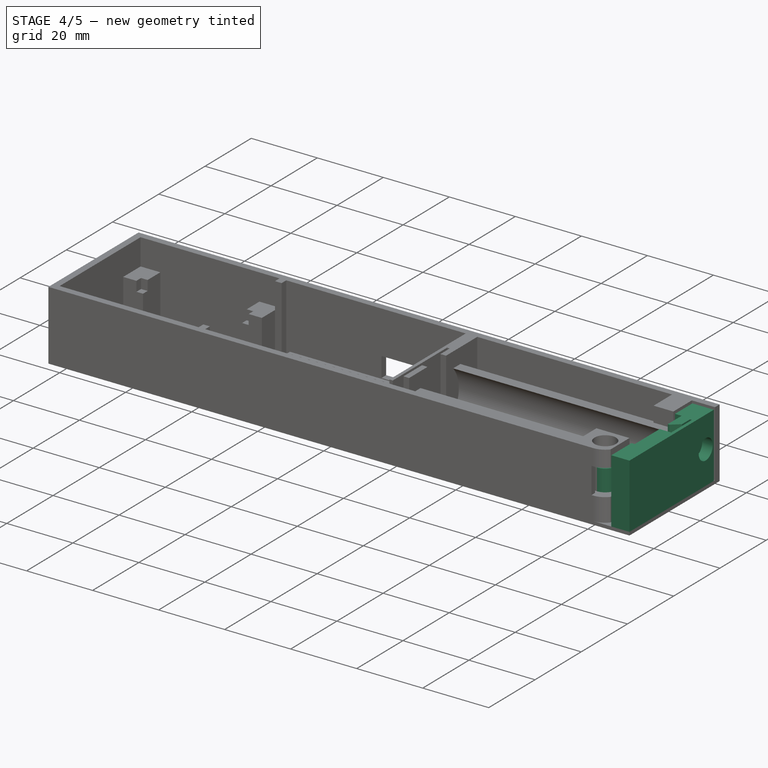
[diagram: stage 4 of 5 — iso view after this stage's code; geometry added in this stage tinted green]
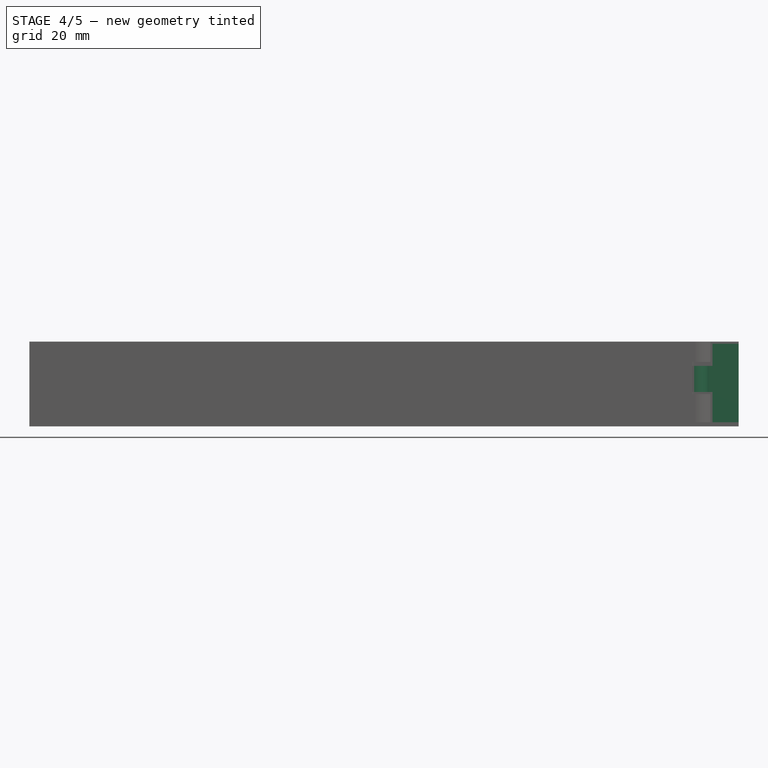
[diagram: stage 4 of 5 — front view after this stage's code; geometry added in this stage tinted green]
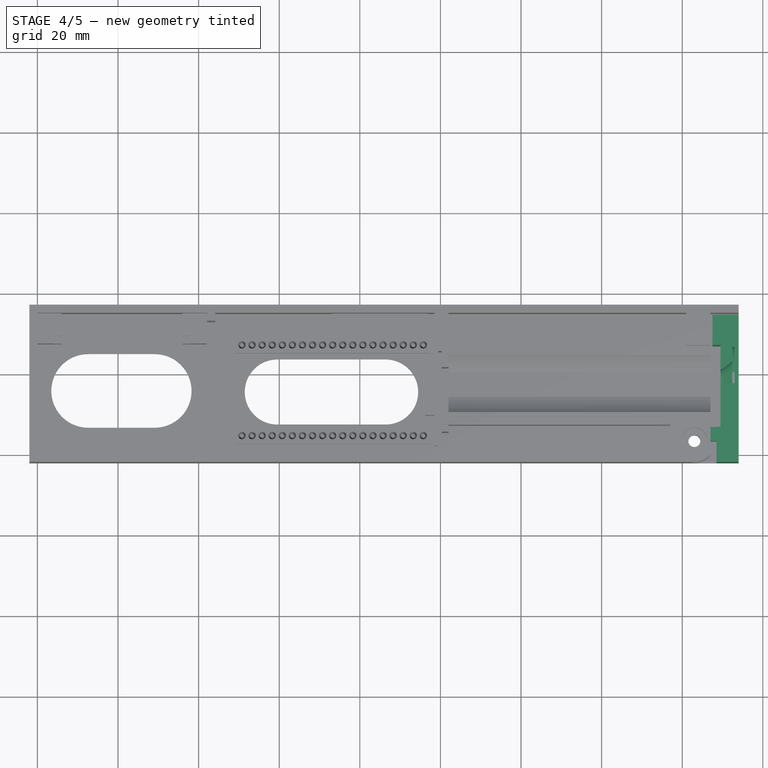
[diagram: stage 4 of 5 — top view after this stage's code; geometry added in this stage tinted green]
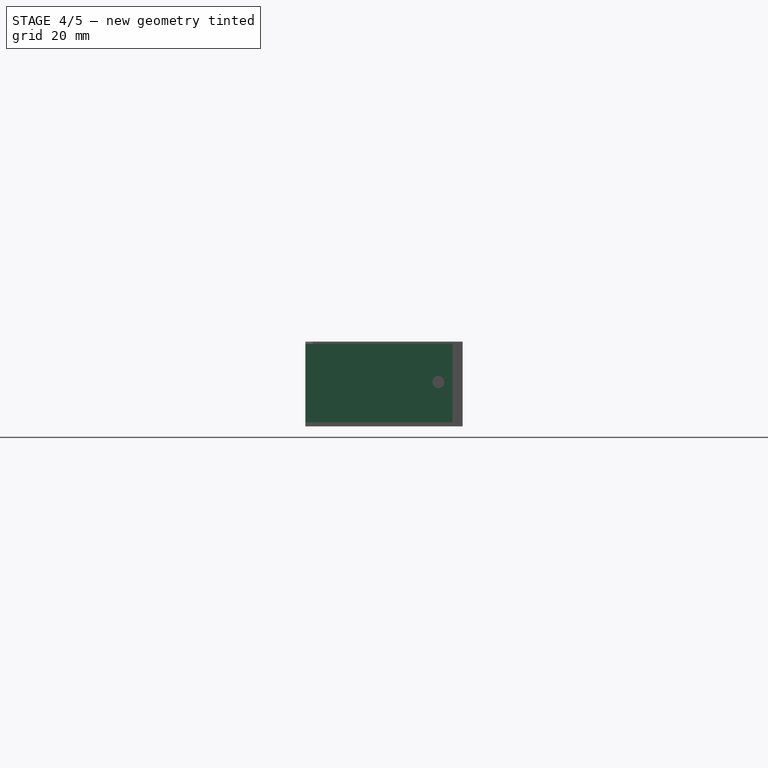
[diagram: stage 4 of 5 — right view after this stage's code; geometry added in this stage tinted green]
FEATURE [PartDesign::ShapeBinder] ShapeBinder006
  Placement = pos=(0,0,20) rot=(0,0,1;0rad)
  Support = -> [Sketch029]
  TraceSupport = false
FEATURE [PartDesign::ShapeBinder] ShapeBinder007
  Support = -> [Sketch]
  TraceSupport = false
FEATURE [PartDesign::ShapeBinder] ShapeBinder008
  Placement = pos=(172,35,0) rot=(0.57735,-0.57735,-0.57735;2.0944rad)
  Support = -> [Sketch015]
  TraceSupport = false
FEATURE [Sketcher::SketchObject] Sketch031
  ExternalGeometry = -> [ShapeBinder006,ShapeBinder007,ShapeBinder008]
  FullyConstrained = true
  MapMode = 5
  Support = -> [XY_Plane003]
  sketch-geometry (11):
    g0: Circle CenterX=163 CenterY=3.25 CenterZ=0 NormalX=0 NormalY=0 NormalZ=1 AngleXU=0 Radius=1.65
    g1: ArcOfCircle CenterX=163 CenterY=3.25 CenterZ=0 NormalX=0 NormalY=0 NormalZ=1 AngleXU=0 Radius=3.5 StartAngle=1.5708 EndAngle=6.28319
    g2: LineSegment StartX=174 StartY=-2 StartZ=0 EndX=174 EndY=34.5 EndZ=0
    g3: LineSegment StartX=174 StartY=34.5 StartZ=0 EndX=167.5 EndY=34.5 EndZ=0
    g4: LineSegment StartX=167.5 StartY=34.5 StartZ=0 EndX=167.5 EndY=27 EndZ=0
    g5: LineSegment StartX=167.5 StartY=27 StartZ=0 EndX=169.5 EndY=27 EndZ=0
    g6: LineSegment StartX=169.5 StartY=27 StartZ=0 EndX=169.5 EndY=6.75 EndZ=0
    g7: LineSegment StartX=169.5 StartY=6.75 StartZ=0 EndX=163 EndY=6.75 EndZ=0
    g8: LineSegment StartX=166.5 StartY=3.25 StartZ=0 EndX=168.5 EndY=3.25 EndZ=0
    g9: LineSegment StartX=168.5 StartY=3.25 StartZ=0 EndX=168.5 EndY=-2 EndZ=0
    g10: LineSegment StartX=168.5 StartY=-2 StartZ=0 EndX=174 EndY=-2 EndZ=0
  constraints (31):
    c: Coincident(g0,g-3)
    c: Diameter(g0) = 3.3
    c: Coincident(g1,g0)
    c: Diameter(g1) = 7
    c: Vertical(g2)
    c: Coincident(g2,g3)
    c: Horizontal(g3)
    c: Coincident(g3,g4)
    c: Vertical(g4)
    c: Coincident(g4,g5)
    c: Horizontal(g5)
    c: Coincident(g5,g6)
    c: Vertical(g6)
    c: Coincident(g6,g7)
    c: Horizontal(g7)
    c: DistanceY(g2,g-9) = 0.5
    c: DistanceX(g6,g-5) = 4.5
    c: DistanceY(g-8,g4) = 0.5
    c: DistanceX(g-6,g5) = 0.5
    c: Tangent(g1,g7) = -1.5708
    c: DistanceX(g-8,g4) = 0.5
    c: Coincident(g8,g1)
    c: Distance(g8) = 2
    c: PointOnObject(g0,g8)
    c: Horizontal(g8)
    c: Coincident(g8,g9)
    c: PointOnObject(g9,g-4)
    c: Vertical(g9)
    c: Coincident(g9,g10)
    c: Coincident(g10,g2)
    c: Coincident(g2,g-5)
FEATURE [PartDesign::Pad] Pad011
  Direction = (0,0,1)
  Length = 19.5
  Length2 = 10
  Profile = -> Sketch031
  ReferenceAxis = -> Sketch031 [N_Axis]
  Type = 0
FEATURE [Sketcher::SketchObject] Sketch033
  ExternalGeometry = -> [Pad011]
  FullyConstrained = true
  MapMode = 5
  Placement = pos=(0,0,0) rot=(1,0,0;1.5708rad)
  Support = -> [XZ_Plane003]
  sketch-geometry (8):
    g0: LineSegment StartX=168.5 StartY=19.5 StartZ=0 EndX=153.5 EndY=19.5 EndZ=0
    g1: LineSegment StartX=153.5 StartY=19.5 StartZ=0 EndX=153.5 EndY=14 EndZ=0
    g2: LineSegment StartX=153.5 StartY=14 StartZ=0 EndX=168.5 EndY=14 EndZ=0
    g3: LineSegment StartX=168.5 StartY=14 StartZ=0 EndX=168.5 EndY=19.5 EndZ=0
    g4: LineSegment StartX=168.5 StartY=-9e-16 StartZ=0 EndX=153.5 EndY=-9e-16 EndZ=0
    g5: LineSegment StartX=153.5 StartY=-9e-16 StartZ=0 EndX=153.5 EndY=7.5 EndZ=0
    g6: LineSegment StartX=153.5 StartY=7.5 StartZ=0 EndX=168.5 EndY=7.5 EndZ=0
    g7: LineSegment StartX=168.5 StartY=7.5 StartZ=0 EndX=168.5 EndY=-9e-16 EndZ=0
  constraints (22):
    c: Coincident(g0,g1)
    c: Coincident(g1,g2)
    c: Coincident(g2,g3)
    c: Coincident(g3,g0)
    c: Horizontal(g0)
    c: Horizontal(g2)
    c: Vertical(g1)
    c: Vertical(g3)
    c: Coincident(g4,g5)
    c: Coincident(g5,g6)
    c: Coincident(g6,g7)
    c: Coincident(g7,g4)
    c: Horizontal(g4)
    c: Horizontal(g6)
    c: Vertical(g5)
    c: Vertical(g7)
    c: Coincident(g4,g-3)
    c: DistanceY(g3,g3) = 5.5
    c: Coincident(g0,g-3)
    c: DistanceY(g7,g7) = 7.5
    c: Vertical(g1,g5)
    c: DistanceX(g0,g0) = 15
FEATURE [PartDesign::Pocket] Pocket016
  BaseFeature = -> Pad011
  Direction = (0,1,2e-16)
  Length = 10
  Length2 = 5
  Profile = -> Sketch033
  ReferenceAxis = -> Sketch033 [N_Axis]
  Type = 4
FEATURE [PartDesign::Plane] DatumPlane007
  Length = 215.799
  MapMode = 47
  Placement = pos=(174,37,0) rot=(0.57735,-0.57735,-0.57735;2.0944rad)
  ResizeMode = 0
  Support = -> [ShapeBinder007]
  Width = 69.799
FEATURE [Sketcher::SketchObject] Sketch035
  ExternalGeometry = -> [ShapeBinder008]
  FullyConstrained = false
  MapMode = 5
  Placement = pos=(174,37,0) rot=(0.57735,-0.57735,-0.57735;2.0944rad)
  Support = -> [DatumPlane007]
  sketch-geometry (1):
    g0: Circle CenterX=6 CenterY=10 CenterZ=0 NormalX=0 NormalY=0 NormalZ=1 AngleXU=0 Radius=0.92519
FEATURE [PartDesign::Hole] Hole002
  BaseFeature = -> Pocket016
  CustomThreadClearance = 0
  Depth = 25
  DepthType = 0
  Diameter = 3
  DrillForDepth = false
  DrillPoint = 1
  DrillPointAngle = 118
  HoleCutCountersinkAngle = 90
  HoleCutCustomValues = false
  HoleCutDepth = 3.2
  HoleCutDiameter = 6.1
  HoleCutType = 1
  ModelThread = false
  Profile = -> Sketch035
  Reversed = true
  Tapered = false
  TaperedAngle = 90
  ThreadClass = 0
  ThreadDepth = 25
  ThreadDepthType = 0
  ThreadDirection = 0
  ThreadFit = 0
  ThreadSize = 0
  ThreadType = 0
  Threaded = false
  UseCustomThreadClearance = false
FEATURE [PartDesign::Line] DatumLine001
  AttacherType = Attacher::AttachEngineLine
  AttachmentOffset = pos=(0,9,0) rot=(0,0,1;0rad)
  Length = 20
  MapMode = 44
  Placement = pos=(0,17.5,9) rot=(0.57735,0.57735,0.57735;2.0944rad)
  ResizeMode = 0
  Support = -> [ShapeBinder007]
FEATURE [Sketcher::SketchObject] Sketch036
  AttachmentOffset = pos=(0,0,9) rot=(0,0,1;0rad)
  ExternalGeometry = -> [DatumLine001,ShapeBinder007,Sketch031]
  FullyConstrained = true
  MapMode = 5
  Placement = pos=(0,0,9) rot=(0,0,1;0rad)
  Support = -> [XY_Plane003]
  sketch-geometry (7):
    g0: LineSegment StartX=169 StartY=21 StartZ=0 EndX=170 EndY=21 EndZ=0
    g1: LineSegment StartX=170 StartY=21 StartZ=0 EndX=172.4 EndY=23 EndZ=0
    g2: LineSegment StartX=172.4 StartY=23 StartZ=0 EndX=172.4 EndY=26.5 EndZ=0
    g3: LineSegment StartX=172.4 StartY=26.5 StartZ=0 EndX=173 EndY=26.5 EndZ=0
    g4: LineSegment StartX=173 StartY=26.5 StartZ=0 EndX=173 EndY=17.5 EndZ=0
    g5: LineSegment StartX=173 StartY=17.5 StartZ=0 EndX=169 EndY=17.5 EndZ=0
    g6: LineSegment StartX=169 StartY=17.5 StartZ=0 EndX=169 EndY=21 EndZ=0
  constraints (21):
    c: PointOnObject(g0,g-6)
    c: Horizontal(g0)
    c: Coincident(g0,g1)
    c: Coincident(g1,g2)
    c: Vertical(g2)
    c: Coincident(g2,g3)
    c: Coincident(g3,g4)
    c: PointOnObject(g4,g-3)
    c: Vertical(g4)
    c: Coincident(g4,g5)
    c: PointOnObject(g5,g-3)
    c: Coincident(g5,g6)
    c: Coincident(g6,g0)
    c: Vertical(g6)
    c: DistanceX(g0,g4) = 3
    c: DistanceX(g-5,g0) = 0.5
    c: DistanceX(g2,g3) = 0.6
    c: DistanceY(g6,g6) = 3.5
    c: DistanceY(g4,g1) = 5.5
    c: DistanceY(g4,g4) = 9
    c: Horizontal(g3)
FEATURE [PartDesign::Groove] Groove001
  Angle = 360
  Axis = (1,0,0)
  Base = (0,17.5,9)
  BaseFeature = -> Hole002
  Profile = -> Sketch036
  ReferenceAxis = -> DatumLine001
FEATURE [PartDesign::Pocket] Pocket018
  BaseFeature = -> Groove001
  Direction = (0,0,-1)
  Length = 5
  Length2 = 5
  Profile = -> Sketch036
  ReferenceAxis = -> Sketch036 [N_Axis]
  Reversed = true
  Type = 1
FEATURE [PartDesign::Body] Body003  label="latch"
  Group = -> [Sketch031,ShapeBinder006,ShapeBinder007,ShapeBinder008,Pad011,Sketch033,Pocket016,DatumPlane007,Sketch035,Hole002,DatumLine001,Sketch036,Groove001,Pocket018,DatumPlane008,Mirrored004,Sketch037,Pocket019,Sketch038,Pocket020]
  Origin = -> Origin003
  Tip = -> Pocket020
FEATURE [Sketcher::SketchObject] Sketch039
  FullyConstrained = false
  MapMode = 5
  Support = -> [XY_Plane]
  sketch-geometry (4):
    g0: LineSegment StartX=149.473 StartY=7.1229 StartZ=0 EndX=168.742 EndY=12.8234 EndZ=0
    g1: LineSegment StartX=168.742 StartY=12.8234 StartZ=0 EndX=168.742 EndY=9.69488 EndZ=0
    g2: LineSegment StartX=168.742 StartY=9.69488 StartZ=0 EndX=150.324 EndY=4.24614 EndZ=0
    g3: LineSegment StartX=150.324 StartY=4.24614 StartZ=0 EndX=149.473 EndY=7.1229 EndZ=0
  constraints (8):
    c: Coincident(g0,g1)
    c: Vertical(g1)
    c: Coincident(g1,g2)
    c: Coincident(g2,g3)
    c: Coincident(g3,g0)
    c: Perpendicular(g3,g0)
    c: Perpendicular(g2,g3)
    c: Distance(g3) = 3
FEATURE [PartDesign::Pocket] Pocket021
  BaseFeature = -> Pocket017
  Direction = (0,0,-1)
  Length = 2
  Length2 = 5
  Profile = -> Sketch039
  ReferenceAxis = -> Sketch039 [N_Axis]
  Reversed = true
  TaperAngle = -33
  Type = 0
FEATURE [PartDesign::Body] Body
  Group = -> [Sketch001,Sketch,Pad,Sketch002,Pad001,DatumPlane,Sketch003,Pad002,Sketch004,Pocket,Sketch005,Pad003,Pad004,LinearPattern,Sketch006,Pocket001,MultiTransform,LinearPattern001,LinearPattern002,DatumPlane002,DatumPlane003,Sketch007,Pad005,Sketch008,MultiTransform001,Mirrored,Mirrored001,Pocket002,MultiTransform002,Mirrored002,Mirrored003,DatumPlane004,Sketch009,Pocket003,DatumPlane005,Sketch015,+13 more]
  Origin = -> Origin
  Tip = -> Pocket021
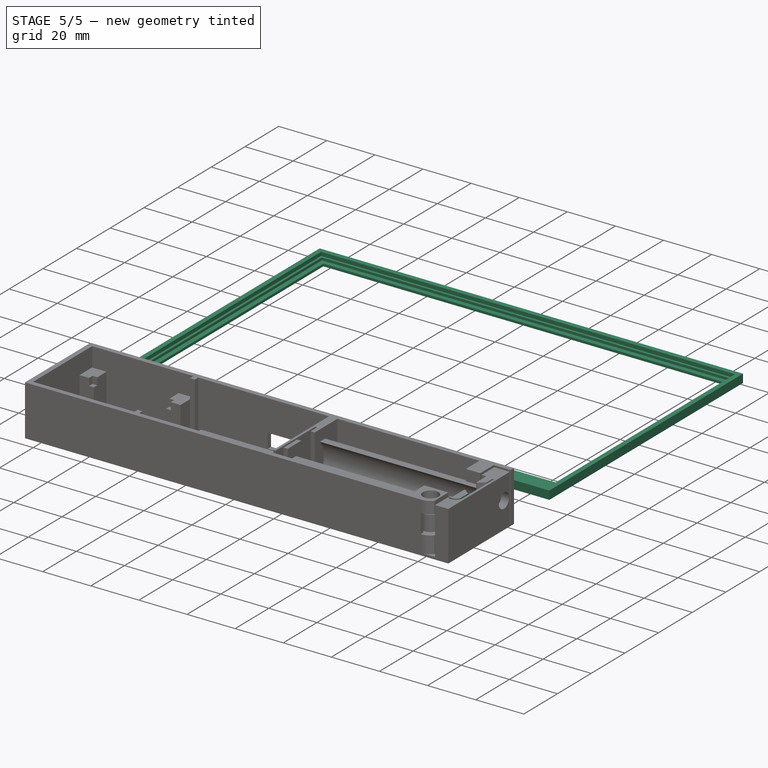
[diagram: stage 5 of 5 — iso view after this stage's code; geometry added in this stage tinted green]
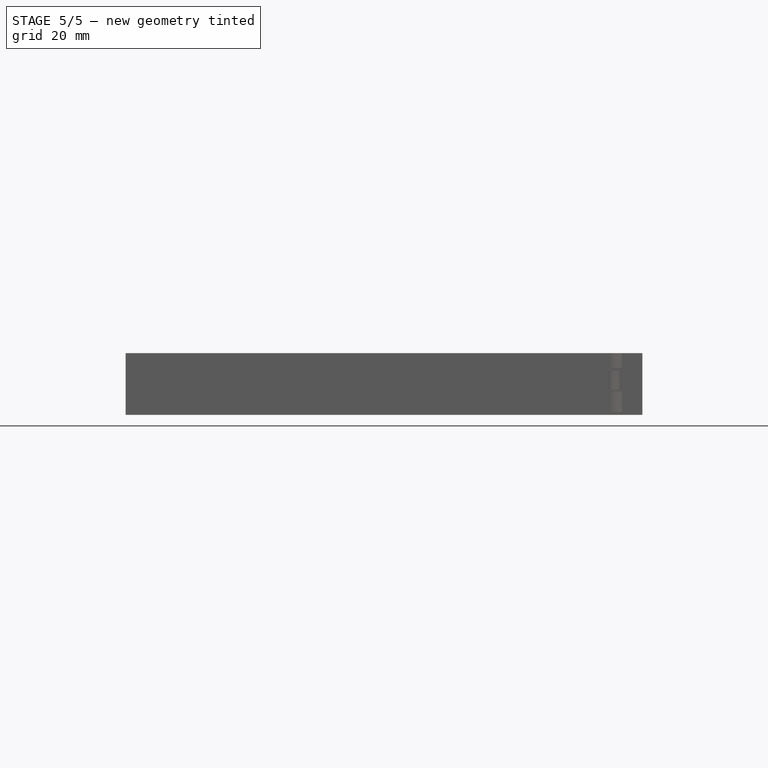
[diagram: stage 5 of 5 — front view after this stage's code; geometry added in this stage tinted green]
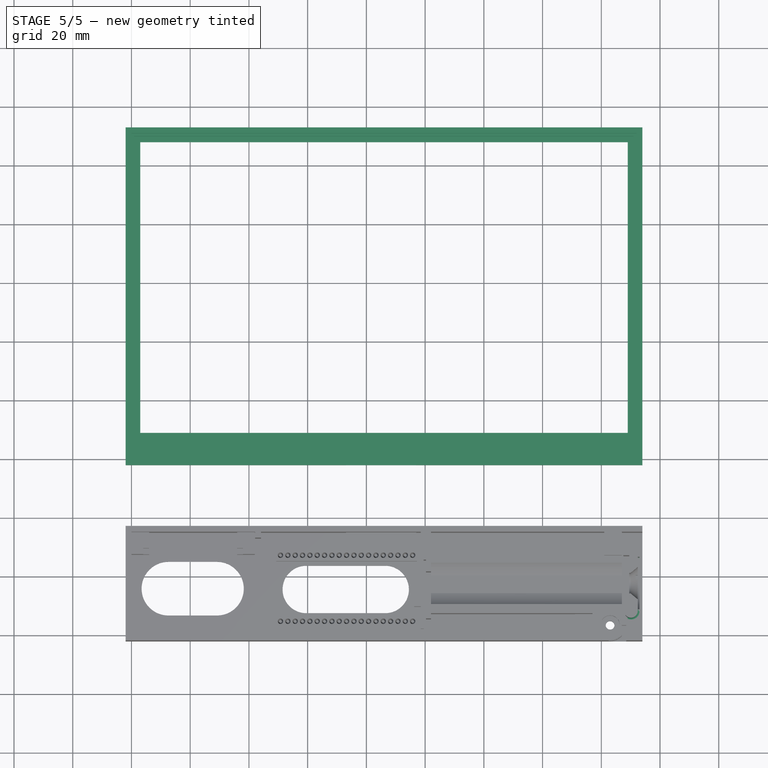
[diagram: stage 5 of 5 — top view after this stage's code; geometry added in this stage tinted green]
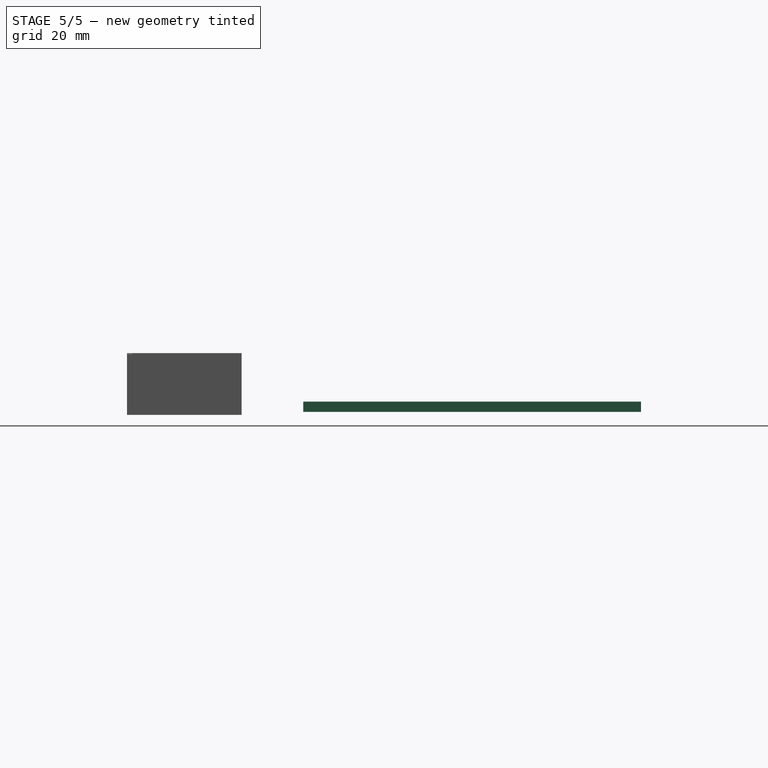
[diagram: stage 5 of 5 — right view after this stage's code; geometry added in this stage tinted green]
FEATURE [PartDesign::ShapeBinder] ShapeBinder002
  Support = -> [Sketch]
  TraceSupport = false
FEATURE [Sketcher::SketchObject] Sketch025
  ExternalGeometry = -> [ShapeBinder002]
  FullyConstrained = false
  MapMode = 5
  Support = -> [XY_Plane002]
  expr: Constraints[10] = .Constraints.thick
  expr: Constraints[11] = .Constraints.thick
  expr: Constraints[12] = .Constraints.thick
  expr: Constraints[13] = .Constraints.thick
  sketch-geometry (9):
    g0: LineSegment StartX=-2 StartY=173 StartZ=0 EndX=174 EndY=173 EndZ=0
    g1: LineSegment StartX=174 StartY=173 StartZ=0 EndX=174 EndY=58 EndZ=0
    g2: LineSegment StartX=174 StartY=58 StartZ=0 EndX=-2 EndY=58 EndZ=0
    g3: LineSegment StartX=-2 StartY=58 StartZ=0 EndX=-2 EndY=173 EndZ=0
    g4: LineSegment StartX=66.3898 StartY=200.269 StartZ=0 EndX=68.3898 EndY=200.269 EndZ=0
    g5: LineSegment StartX=3 StartY=168 StartZ=0 EndX=169 EndY=168 EndZ=0
    g6: LineSegment StartX=169 StartY=168 StartZ=0 EndX=169 EndY=69 EndZ=0
    g7: LineSegment StartX=169 StartY=69 StartZ=0 EndX=3 EndY=69 EndZ=0
    g8: LineSegment StartX=3 StartY=69 StartZ=0 EndX=3 EndY=168 EndZ=0
  constraints (24):
    c: Coincident(g0,g1)
    c: Coincident(g1,g2)
    c: Coincident(g2,g3)
    c: Coincident(g3,g0)
    c: Horizontal(g0)
    c: Horizontal(g2)
    c: Vertical(g1)
    c: Vertical(g3)
    c: Horizontal(g4)
    c: DistanceX(g4,g4) = 2  'thick'
    c: DistanceX(g0,g-3) = 2
    c: DistanceY(g-3,g0) = 2
    c: DistanceY(g1,g-5) = 2
    c: DistanceX(g-5,g1) = 2
    c: Coincident(g5,g6)
    c: Coincident(g6,g7)
    c: Coincident(g7,g8)
    c: Coincident(g8,g5)
    c: Horizontal(g5)
    c: Horizontal(g7)
    c: Vertical(g6)
    c: Vertical(g8)
    c: Coincident(g5,g-6)
    c: Coincident(g6,g-7)
FEATURE [PartDesign::Pad] Pad009
  Direction = (0,0,1)
  Length = 2
  Length2 = 10
  Profile = -> Sketch025
  ReferenceAxis = -> Sketch025 [N_Axis]
  Type = 0
FEATURE [Sketcher::SketchObject] Sketch026
  AttachmentOffset = pos=(0,0,2) rot=(0,0,1;0rad)
  ExternalGeometry = -> [ShapeBinder002]
  FullyConstrained = false
  MapMode = 5
  Placement = pos=(0,0,2) rot=(0,0,1;0rad)
  Support = -> [XY_Plane002]
  expr: Constraints[10] = .Constraints.gap
  expr: Constraints[11] = .Constraints.gap
  expr: Constraints[12] = .Constraints.gap
  expr: Constraints[13] = .Constraints.gap
  sketch-geometry (5):
    g0: LineSegment StartX=1 StartY=170 StartZ=0 EndX=171 EndY=170 EndZ=0
    g1: LineSegment StartX=171 StartY=170 StartZ=0 EndX=171 EndY=67 EndZ=0
    g2: LineSegment StartX=171 StartY=67 StartZ=0 EndX=1 EndY=67 EndZ=0
    g3: LineSegment StartX=1 StartY=67 StartZ=0 EndX=1 EndY=170 EndZ=0
    g4: LineSegment StartX=67.8088 StartY=186.893 StartZ=0 EndX=69.8088 EndY=186.893 EndZ=0
  constraints (14):
    c: Coincident(g0,g1)
    c: Coincident(g1,g2)
    c: Coincident(g2,g3)
    c: Coincident(g3,g0)
    c: Horizontal(g0)
    c: Horizontal(g2)
    c: Vertical(g1)
    c: Vertical(g3)
    c: Horizontal(g4)
    c: DistanceX(g4,g4) = 2  'gap'
    c: DistanceX(g0,g-3) = 2
    c: DistanceY(g-3,g0) = 2
    c: DistanceY(g1,g-4) = 2
    c: DistanceX(g-4,g1) = 2
FEATURE [PartDesign::Pocket] Pocket012
  BaseFeature = -> Pad009
  Direction = (0,0,-1)
  Length = 1
  Length2 = 5
  Profile = -> Sketch026
  ReferenceAxis = -> Sketch026 [N_Axis]
  Type = 0
FEATURE [Sketcher::SketchObject] Sketch027
  ExternalGeometry = -> [ShapeBinder002]
  FullyConstrained = true
  MapMode = 5
  Support = -> [XY_Plane002]
  sketch-geometry (11):
    g0: LineSegment StartX=0 StartY=171 StartZ=0 EndX=172 EndY=171 EndZ=0
    g1: LineSegment StartX=172 StartY=171 StartZ=0 EndX=172 EndY=60 EndZ=0
    g2: LineSegment StartX=172 StartY=60 StartZ=0 EndX=0 EndY=60 EndZ=0
    g3: LineSegment StartX=0 StartY=60 StartZ=0 EndX=0 EndY=171 EndZ=0
    g4: LineSegment StartX=-2 StartY=173 StartZ=0 EndX=174 EndY=173 EndZ=0
    g5: LineSegment StartX=174 StartY=173 StartZ=0 EndX=174 EndY=58 EndZ=0
    g6: LineSegment StartX=174 StartY=58 StartZ=0 EndX=-2 EndY=58 EndZ=0
    g7: LineSegment StartX=-2 StartY=58 StartZ=0 EndX=-2 EndY=173 EndZ=0
    g8: LineSegment StartX=174 StartY=37 StartZ=0 EndX=172 EndY=35 EndZ=0
    g9: LineSegment StartX=174 StartY=58 StartZ=0 EndX=172 EndY=60 EndZ=0
    g10: LineSegment StartX=-2 StartY=173 StartZ=0 EndX=0 EndY=171 EndZ=0
  constraints (28):
    c: Coincident(g0,g1)
    c: Coincident(g1,g2)
    c: Coincident(g2,g3)
    c: Coincident(g3,g0)
    c: Horizontal(g0)
    c: Horizontal(g2)
    c: Vertical(g1)
    c: Vertical(g3)
    c: Coincident(g0,g-3)
    c: Coincident(g1,g-5)
    c: Coincident(g4,g5)
    c: Coincident(g5,g6)
    c: Coincident(g6,g7)
    c: Coincident(g7,g4)
    c: Horizontal(g4)
    c: Horizontal(g6)
    c: Vertical(g5)
    c: Vertical(g7)
    c: Vertical(g5,g-7)
    c: Vertical(g-6,g6)
    c: Coincident(g8,g-7)
    c: Coincident(g8,g-8)
    c: Coincident(g9,g5)
    c: Coincident(g9,g1)
    c: Coincident(g10,g4)
    c: Coincident(g10,g0)
    c: Equal(g9,g8)
    c: Equal(g10,g9)
FEATURE [PartDesign::Pad] Pad010
  BaseFeature = -> Pocket012
  Direction = (0,0,1)
  Length = 3.5
  Length2 = 10
  Profile = -> Sketch027
  ReferenceAxis = -> Sketch027 [N_Axis]
  Type = 0
FEATURE [Sketcher::SketchObject] Sketch028
  AttachmentOffset = pos=(0,0,3.5) rot=(0,0,1;0rad)
  ExternalGeometry = -> [ShapeBinder002]
  FullyConstrained = true
  MapMode = 5
  Placement = pos=(0,0,3.5) rot=(0,0,1;0rad)
  Support = -> [XY_Plane002]
  sketch-geometry (4):
    g0: LineSegment StartX=73 StartY=61 StartZ=0 EndX=97 EndY=61 EndZ=0
    g1: LineSegment StartX=97 StartY=61 StartZ=0 EndX=97 EndY=46 EndZ=0
    g2: LineSegment StartX=97 StartY=46 StartZ=0 EndX=73 EndY=46 EndZ=0
    g3: LineSegment StartX=73 StartY=46 StartZ=0 EndX=73 EndY=61 EndZ=0
  constraints (12):
    c: Coincident(g0,g1)
    c: Coincident(g1,g2)
    c: Coincident(g2,g3)
    c: Coincident(g3,g0)
    c: Horizontal(g0)
    c: Horizontal(g2)
    c: Vertical(g1)
    c: Vertical(g3)
    c: DistanceY(g-4,g0) = 1
    c: DistanceX(g0,g-4) = 1
    c: DistanceX(g-3,g0) = 1
    c: Horizontal(g-3,g1)
FEATURE [PartDesign::Pocket] Pocket013
  BaseFeature = -> Pad010
  Direction = (0,0,-1)
  Length = 1.5
  Length2 = 5
  Profile = -> Sketch028
  ReferenceAxis = -> Sketch028 [N_Axis]
  Type = 0
FEATURE [PartDesign::Plane] DatumPlane008
  Length = 69.9499
  MapMode = 4
  Placement = pos=(0,17.5,9) rot=(0.57735,0.57735,0.57735;4.18879rad)
  ResizeMode = 0
  Support = -> [DatumLine001]
  Width = 218.95
FEATURE [PartDesign::Mirrored] Mirrored004
  BaseFeature = -> Pocket018
  MirrorPlane = -> DatumPlane008
  Originals = -> [Pocket018]
FEATURE [Sketcher::SketchObject] Sketch037
  ExternalGeometry = -> [Sketch036]
  FullyConstrained = true
  MapMode = 5
  Support = -> [XY_Plane003]
  sketch-geometry (8):
    g0: LineSegment StartX=173 StartY=17.5 StartZ=0 EndX=173 EndY=26.5 EndZ=0
    g1: LineSegment StartX=173 StartY=26.5 StartZ=0 EndX=172.4 EndY=26.5 EndZ=0
    g2: LineSegment StartX=172.4 StartY=26.5 StartZ=0 EndX=172.4 EndY=20.5 EndZ=0
    g3: LineSegment StartX=172.4 StartY=20.5 StartZ=0 EndX=171.7 EndY=20.5 EndZ=0
    g4: LineSegment StartX=171.7 StartY=20.5 StartZ=0 EndX=171.7 EndY=19 EndZ=0
    g5: LineSegment StartX=171.7 StartY=19 StartZ=0 EndX=172.4 EndY=19 EndZ=0
    g6: LineSegment StartX=172.4 StartY=19 StartZ=0 EndX=172.4 EndY=17.5 EndZ=0
    g7: LineSegment StartX=172.4 StartY=17.5 StartZ=0 EndX=173 EndY=17.5 EndZ=0
  constraints (21):
    c: Coincident(g-3,g0)
    c: Coincident(g0,g-3)
    c: Coincident(g0,g1)
    c: Coincident(g1,g-4)
    c: Coincident(g1,g2)
    c: Vertical(g2)
    c: Coincident(g2,g3)
    c: Coincident(g3,g4)
    c: Vertical(g4)
    c: Coincident(g4,g5)
    c: Horizontal(g5)
    c: Coincident(g5,g6)
    c: Coincident(g6,g7)
    c: Coincident(g7,g0)
    c: Horizontal(g7)
    c: DistanceY(g0,g2) = 3
    c: Horizontal(g3)
    c: DistanceY(g4,g4) = 1.5
    c: DistanceX(g5,g5) = 0.7
    c: Vertical(g6)
    c: Vertical(g2,g5)
FEATURE [PartDesign::Pocket] Pocket019
  BaseFeature = -> Mirrored004
  Direction = (0,0,-1)
  Length = 9
  Length2 = 5
  Profile = -> Sketch037
  ReferenceAxis = -> Sketch037 [N_Axis]
  Reversed = true
  Type = 0
FEATURE [Sketcher::SketchObject] Sketch038
  AttachmentOffset = pos=(0,0,6.5) rot=(0,0,1;0rad)
  ExternalGeometry = -> [Sketch036]
  FullyConstrained = true
  MapMode = 5
  Placement = pos=(0,0,6.5) rot=(0,0,1;0rad)
  Support = -> [XY_Plane003]
  sketch-geometry (6):
    g0: LineSegment StartX=173 StartY=17.5 StartZ=0 EndX=173 EndY=8 EndZ=0
    g1: ArcOfCircle CenterX=170.125 CenterY=8 CenterZ=0 NormalX=0 NormalY=0 NormalZ=1 AngleXU=0 Radius=2.875 StartAngle=3.14159 EndAngle=6.28319
    g2: LineSegment StartX=173 StartY=17.5 StartZ=0 EndX=172.4 EndY=17.5 EndZ=0
    g3: LineSegment StartX=172.4 StartY=17.5 StartZ=0 EndX=172.4 EndY=8 EndZ=0
    g4: ArcOfCircle CenterX=170.125 CenterY=8 CenterZ=0 NormalX=0 NormalY=0 NormalZ=1 AngleXU=0 Radius=2.275 StartAngle=3.14159 EndAngle=6.28319
    g5: LineSegment StartX=167.85 StartY=8 StartZ=0 EndX=167.25 EndY=8 EndZ=0
  constraints (17):
    c: Coincident(g-3,g0)
    c: Vertical(g0)
    c: DistanceY(g0,g0) = 9.5
    c: Tangent(g1,g0) = 1.5708
    c: Coincident(g0,g2)
    c: Coincident(g2,g3)
    c: Vertical(g3)
    c: Coincident(g4,g1)
    c: Coincident(g4,g3)
    c: Horizontal(g2)
    c: Vertical(g-4,g2)
    c: Horizontal(g3,g0)
    c: Coincident(g5,g4)
    c: Coincident(g5,g1)
    c: Horizontal(g5)
    c: Horizontal(g4,g1)
    c: Diameter(g1) = 5.75
FEATURE [PartDesign::Pocket] Pocket020
  BaseFeature = -> Pocket019
  Direction = (0,0,-1)
  Length = 5
  Length2 = 5
  Profile = -> Sketch038
  ReferenceAxis = -> Sketch038 [N_Axis]
  Reversed = true
  Type = 1
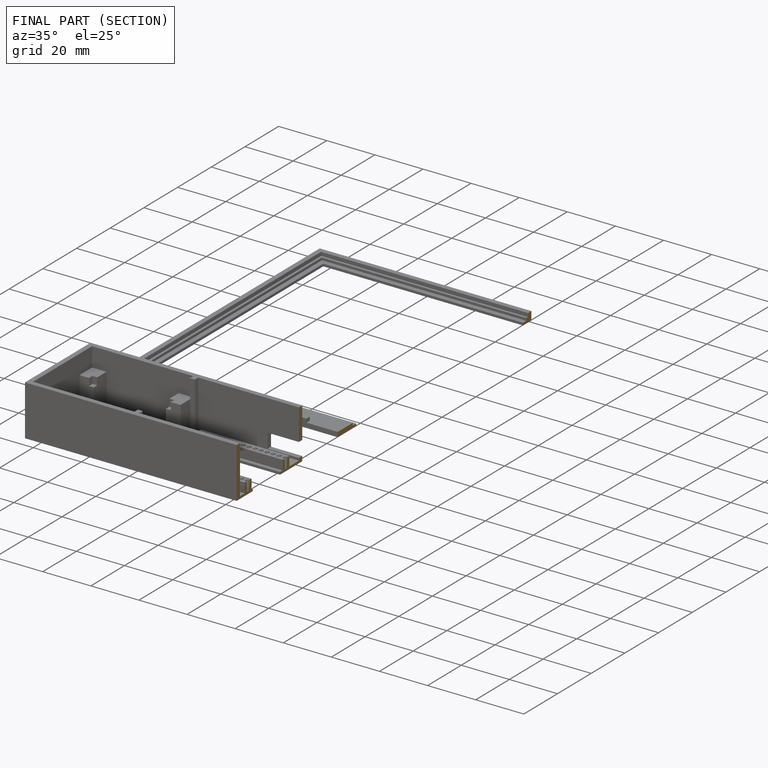
[diagram: finished part — half-section view (interior)]
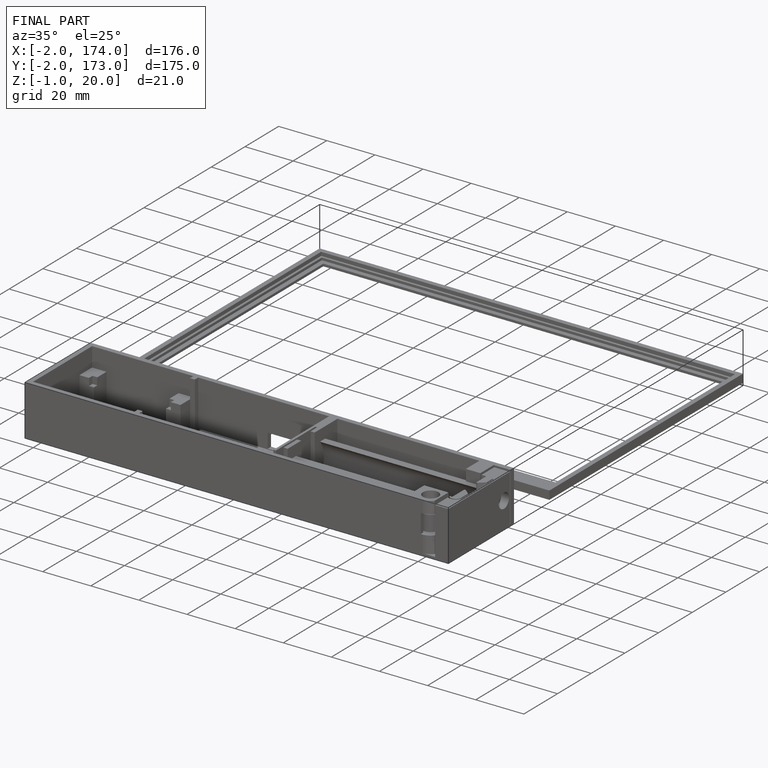
[diagram: finished part — iso view with bounding-box wireframe]
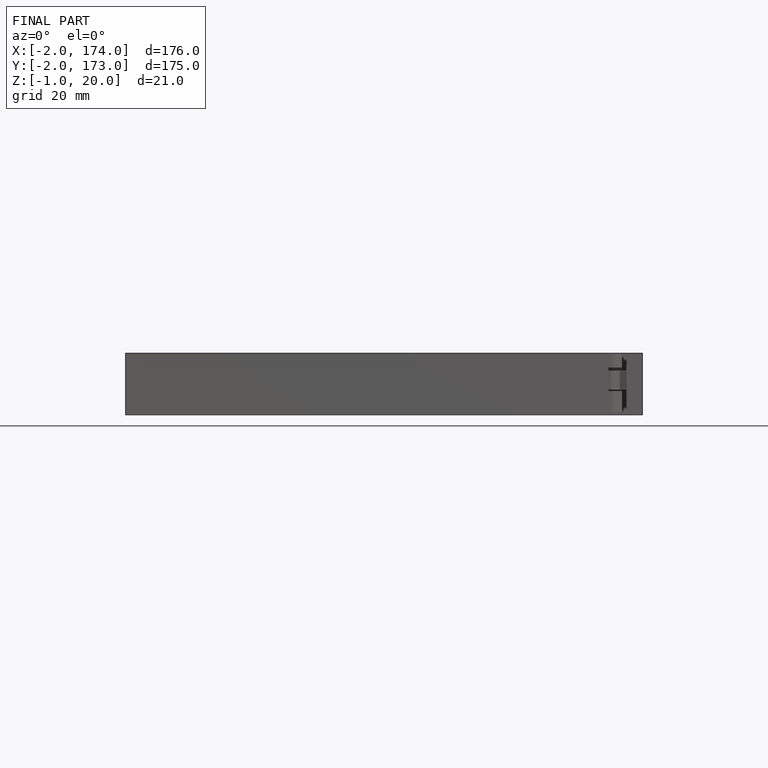
[diagram: finished part — front view with bounding-box wireframe]
